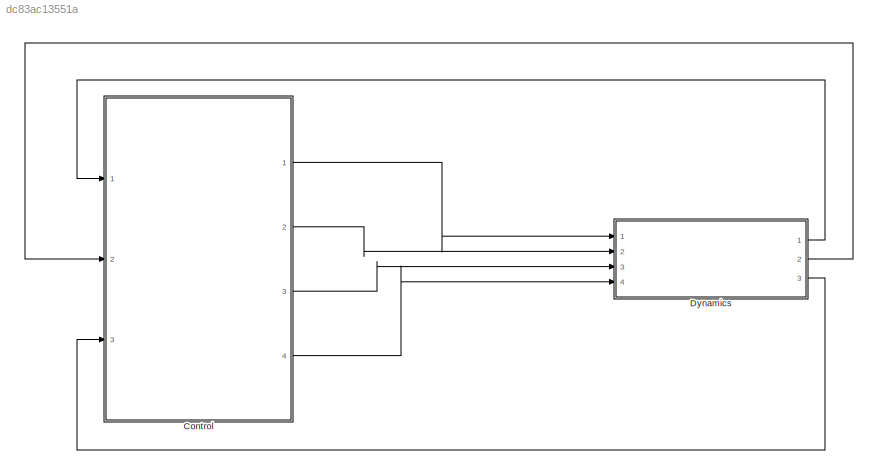
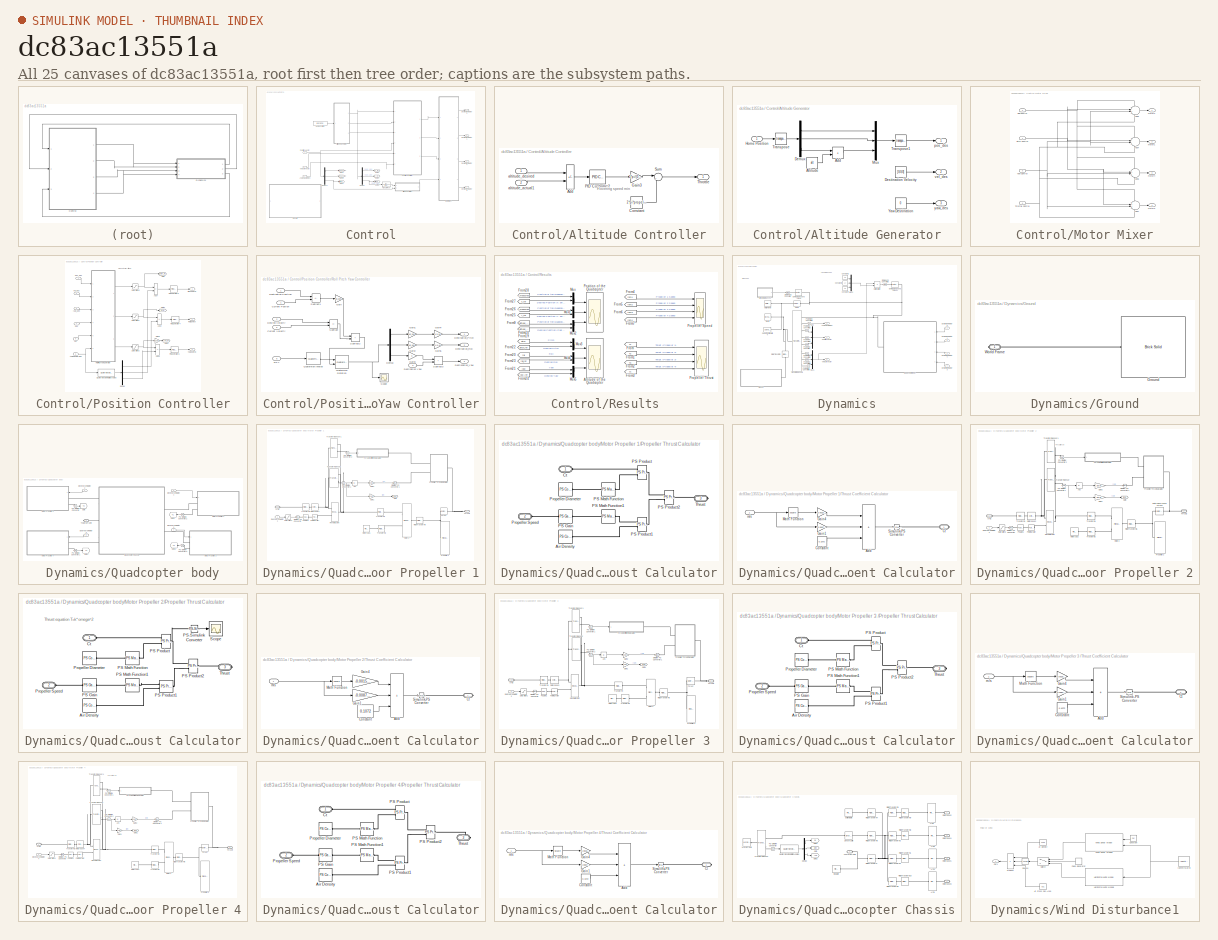
[diagram: thumbnail index - all 25 canvases of the model, root first then tree order]
MODEL slx_dc83ac13551a
KIND model
CONFIG AbsTol = 1e-4
CONFIG EnableMultiTasking = off
CONFIG FixedStep = auto
CONFIG MaxStep = 0.1
CONFIG MinStep = auto
CONFIG RelTol = 1e-4
CONFIG SampleTimeConstraint = Unconstrained
CONFIG SolverName = FixedStepAuto
CONFIG StartTime = 0.0
CONFIG StopTime = inf
WORKSPACE source: MATLAB code (in-file) + mxarray member
WORKSPACE code: load('xy_data_membrane.mat');
WORKSPACE Ax = 0.25
WORKSPACE Ay = 0.25
WORKSPACE Az = 0.25
WORKSPACE T_stop = 25
WORKSPACE Ts = 0.001
WORKSPACE Tsc = 0.001
WORKSPACE V_nominal = 1
WORKSPACE dx = -2.5
WORKSPACE dy = -1.5
WORKSPACE dz = 5
WORKSPACE i = 5
WORKSPACE infPlane: object (value not decoded)
WORKSPACE kd_altitude = 0.475
WORKSPACE kd_attitude = 40
WORKSPACE kd_position = 0.85
WORKSPACE ki_altitude = 0.0275
WORKSPACE ki_attitude = 5
WORKSPACE kp_altitude = 0.15
WORKSPACE kp_attitude = 8.5
WORKSPACE kp_position = 0.0175
WORKSPACE pkgDensity = 5
WORKSPACE pkgGrndDamp = 30
WORKSPACE pkgGrndStiff = 10000
WORKSPACE pkgGrndTransW = 1e-06
WORKSPACE pkgSize = [0.15 0.15 0.15]
WORKSPACE propeller: object (value not decoded)
WORKSPACE rho_al = 2.66
WORKSPACE rho_cfrp = 2.10666666667
WORKSPACE rho_glass = 2.56
WORKSPACE rho_nylon = 1.41
WORKSPACE rho_pla = 1.25
WORKSPACE targetX = 5
WORKSPACE targetY = 3
WORKSPACE targetZ = 1
WORKSPACE timespot = [5.94 2.5 2.5 2.5 5]
WORKSPACE tx = 2.5
WORKSPACE ty = 1.5
WORKSPACE tz = 5
WORKSPACE waypoints = [-5 -3 6 -2.5 -1.5 6 0 0 6 2.5 1.5 6 ... (15 elements, 3x5)]
WORKSPACE x0 = -5
WORKSPACE xTrajPts = [-5 -5 -2.5 0 2.5 5]
WORKSPACE x_waypt = [-5 -2.5 0 2.5 5]
WORKSPACE xrot = 0
WORKSPACE y0 = -3
WORKSPACE yTrajPts = [-3 -3 -1.5 0 1.5 3]
WORKSPACE y_waypt = [-3 -1.5 0 1.5 3]
WORKSPACE yrot = 0
WORKSPACE z0 = 0.06
WORKSPACE zTrajPts = [0.06 6 6 6 6 1]
WORKSPACE z_waypt = [6 6 6 6 1]
WORKSPACE zrot = 0
BLOCK [SubSystem] Control
  Ports = [3, 4]
  RequestExecContextInheritance = off
BLOCK [SubSystem] Control/Altitude Controller
  Ports = [2, 1]
  RequestExecContextInheritance = off
BLOCK [Sum] Control/Altitude Controller/Add
  IconShape = rectangular
  Inputs = +-
  Ports = [2, 1]
BLOCK [Constant] Control/Altitude Controller/Constant
  Value = 2*pi*propeller.hover_speed
BLOCK [Gain] Control/Altitude Controller/Gain3
  Gain = 2*pi/(0.254^4 * sqrt(1.225))
BLOCK [Reference] Control/Altitude Controller/PID Controller2  REF=slpidlib/PID Controller
  Ports = [1, 1]
  SourceBlock = slpidlib/PID Controller
  SourceProductBaseCode = SL
  SourceType = PID 1dof
BLOCK [Sum] Control/Altitude Controller/Sum
  Inputs = |++
  Ports = [2, 1]
BLOCK [Outport] Control/Altitude Controller/Throttle
BLOCK [Inport] Control/Altitude Controller/altitude_actual1
  Port = 2
BLOCK [Inport] Control/Altitude Controller/altitude_desired
BLOCK [SubSystem] Control/Altitude Generator
  Ports = [1, 3]
  RequestExecContextInheritance = off
BLOCK [Sum] Control/Altitude Generator/Add
  IconShape = rectangular
  Ports = [2, 1]
BLOCK [Constant] Control/Altitude Generator/Altitude
  Value = alt
BLOCK [Demux] Control/Altitude Generator/Demux
  Outputs = 3
  Ports = [1, 3]
BLOCK [Constant] Control/Altitude Generator/Destination Velocity
  Value = [0;0;0]
BLOCK [Inport] Control/Altitude Generator/Home Position
BLOCK [Mux] Control/Altitude Generator/Mux
  DisplayOption = bar
  Inputs = 3
  Ports = [3, 1]
BLOCK [Math] Control/Altitude Generator/Transpose
  Operator = transpose
  Ports = [1, 1]
BLOCK [Math] Control/Altitude Generator/Transpose1
  Operator = transpose
  Ports = [1, 1]
BLOCK [Constant] Control/Altitude Generator/Yaw Destination
  Value = 0
BLOCK [Outport] Control/Altitude Generator/pos_des
BLOCK [Outport] Control/Altitude Generator/vel_des
  Port = 2
BLOCK [Outport] Control/Altitude Generator/yaw_des
  Port = 3
BLOCK [Inport] Control/Angle Quaternion
  Port = 3
BLOCK [Demux] Control/Demux
  Outputs = 3
  Ports = [1, 3]
BLOCK [Demux] Control/Demux1
  Outputs = 3
  Ports = [1, 3]
BLOCK [Outport] Control/Desired rpm Motor 1
  Port = 2
BLOCK [Outport] Control/Desired rpm Motor 2
BLOCK [Outport] Control/Desired rpm Motor 3
  Port = 4
BLOCK [Outport] Control/Desired rpm Motor 4
  Port = 3
BLOCK [Goto] Control/Goto1
  GotoTag = x_measured
  TagVisibility = global
BLOCK [Goto] Control/Goto2
  GotoTag = x_ref
  TagVisibility = global
BLOCK [Goto] Control/Goto3
  GotoTag = y_ref
  TagVisibility = global
BLOCK [Goto] Control/Goto4
  GotoTag = altitude_measured
  TagVisibility = global
BLOCK [Goto] Control/Goto5
  GotoTag = altitude_ref
  TagVisibility = global
BLOCK [Goto] Control/Goto6
  GotoTag = y_measured
  TagVisibility = global
BLOCK [Constant] Control/Home Position
  Value = [x0;y0;z0]
BLOCK [SubSystem] Control/Motor Mixer
  Ports = [4, 4]
  RequestExecContextInheritance = off
BLOCK [Sum] Control/Motor Mixer/Add4
  Inputs = +--+
  Ports = [4, 1]
BLOCK [Sum] Control/Motor Mixer/Add5
  Inputs = --++
  Ports = [4, 1]
BLOCK [Sum] Control/Motor Mixer/Add6
  Inputs = -+-+
  Ports = [4, 1]
BLOCK [Sum] Control/Motor Mixer/Add7
  Inputs = ++++
  Ports = [4, 1]
BLOCK [Inport] Control/Motor Mixer/Pitch Control
BLOCK [Inport] Control/Motor Mixer/Roll Control
  Port = 2
BLOCK [Inport] Control/Motor Mixer/Throttle Control
  Port = 4
BLOCK [Inport] Control/Motor Mixer/Yaw Control
  Port = 3
BLOCK [Outport] Control/Motor Mixer/motor1
  Port = 2
BLOCK [Outport] Control/Motor Mixer/motor2
BLOCK [Outport] Control/Motor Mixer/motor3
  Port = 4
BLOCK [Outport] Control/Motor Mixer/motor4
  Port = 3
BLOCK [SubSystem] Control/Position Controller
  Ports = [6, 3]
  RequestExecContextInheritance = off
BLOCK [Sum] Control/Position Controller/Add2
  IconShape = rectangular
  Inputs = +-
  Ports = [2, 1]
BLOCK [Sum] Control/Position Controller/Add3
  IconShape = rectangular
  Inputs = +-
  Ports = [2, 1]
BLOCK [Sum] Control/Position Controller/Add7
  IconShape = rectangular
  Inputs = +-
  Ports = [2, 1]
BLOCK [Inport] Control/Position Controller/Angle Quaternion
  Port = 6
BLOCK [Demux] Control/Position Controller/Demux
  Outputs = 3
  Ports = [1, 3]
BLOCK [Gain] Control/Position Controller/Gain9
  Gain = 180/pi
BLOCK [Goto] Control/Position Controller/Goto
  GotoTag = pitch_ref
  TagVisibility = global
BLOCK [Goto] Control/Position Controller/Goto1
  GotoTag = roll_ref
  TagVisibility = global
BLOCK [Goto] Control/Position Controller/Goto2
  GotoTag = yaw_ref
  TagVisibility = global
BLOCK [Reference] Control/Position Controller/PID Controller4  REF=slpidlib/PID Controller
  Ports = [1, 1]
  SourceBlock = slpidlib/PID Controller
  SourceProductBaseCode = SL
  SourceType = PID 1dof
BLOCK [Reference] Control/Position Controller/PID Controller5  REF=slpidlib/PID Controller
  Ports = [1, 1]
  SourceBlock = slpidlib/PID Controller
  SourceProductBaseCode = SL
  SourceType = PID 1dof
BLOCK [Reference] Control/Position Controller/PID Controller6  REF=slpidlib/PID Controller
  Ports = [1, 1]
  SourceBlock = slpidlib/PID Controller
  SourceProductBaseCode = SL
  SourceType = PID 1dof
BLOCK [Outport] Control/Position Controller/Pitch Control
BLOCK [Reference] Control/Position Controller/Quaternions to Rotation Angles  REF=sharedtransform/Quaternions to Rotation Angles
  AttributesFormatString = Rotation Order: %<rotationOrder>
  Ports = [1, 1]
  SourceBlock = sharedtransform/Quaternions to Rotation Angles
  SourceProductBaseCode = AE,PW,DR,MT,UV,VE
  SourceType = Quat2Ang
BLOCK [Outport] Control/Position Controller/Roll Control
  Port = 2
BLOCK [SubSystem] Control/Position Controller/Roll Pitch Yaw Controller
  Ports = [6, 3]
  RequestExecContextInheritance = off
BLOCK [Inport] Control/Position Controller/Roll Pitch Yaw Controller/Current Postion
  Port = 4
BLOCK [Inport] Control/Position Controller/Roll Pitch Yaw Controller/Current Velocity
  Port = 5
BLOCK [Demux] Control/Position Controller/Roll Pitch Yaw Controller/Demux
  Outputs = 3
  Ports = [1, 3]
BLOCK [Inport] Control/Position Controller/Roll Pitch Yaw Controller/Desired Velocity
  Port = 2
BLOCK [Inport] Control/Position Controller/Roll Pitch Yaw Controller/Destination Position
BLOCK [Inport] Control/Position Controller/Roll Pitch Yaw Controller/Destination Yaw
  Port = 3
BLOCK [Outport] Control/Position Controller/Roll Pitch Yaw Controller/Destination_Pitch
BLOCK [Outport] Control/Position Controller/Roll Pitch Yaw Controller/Destination_Roll
  Port = 2
BLOCK [Outport] Control/Position Controller/Roll Pitch Yaw Controller/Destionation_Yaw
  Port = 3
BLOCK [Gain] Control/Position Controller/Roll Pitch Yaw Controller/Gain
  Gain = Kp_pos
BLOCK [Gain] Control/Position Controller/Roll Pitch Yaw Controller/Gain1
  Gain = Kd_pos
BLOCK [Gain] Control/Position Controller/Roll Pitch Yaw Controller/Gain2
  Gain = Kd_pos
BLOCK [Gain] Control/Position Controller/Roll Pitch Yaw Controller/Gain3
  Gain = 0
BLOCK [Gain] Control/Position Controller/Roll Pitch Yaw Controller/Gain4
  Gain = 1/9.81
BLOCK [Gain] Control/Position Controller/Roll Pitch Yaw Controller/Gain5
  Gain = -1/9.81
BLOCK [Reference] Control/Position Controller/Roll Pitch Yaw Controller/Quaternion Inverse  REF=aerolibutil/Quaternion
Inverse
  Ports = [1, 1]
  SourceBlock = aerolibutil/Quaternion\nInverse
  SourceProductBaseCode = AE
  SourceType = Quaternion Inverse
BLOCK [Reference] Control/Position Controller/Roll Pitch Yaw Controller/Quaternion Rotation  REF=aerolibutil/Quaternion
Rotation
  Ports = [2, 1]
  SourceBlock = aerolibutil/Quaternion\nRotation
  SourceProductBaseCode = AE
  SourceType = Quaternion Rotation
BLOCK [Inport] Control/Position Controller/Roll Pitch Yaw Controller/RPY
  Port = 6
BLOCK [Scope] Control/Position Controller/Roll Pitch Yaw Controller/Scope
  Floating = off
  NumInputPorts = 1
  Ports = [1]
  ScopeSpecificationString = Simulink.scopes.TimeScopeBlockCfg('CurrentConfiguration', extmgr.ConfigurationSet(extmgr.Configuration('Core','General UI',true),extmgr.Configuration('Core','Source UI',true),extmgr.Configuration('Sources','WiredSimulink',true,'DataLoggingVariableName','ScopeData1'),extmgr.Configuration('Visuals','Time Domain',true),extmgr.Configuration('Tools','Plot Navigation',true),extmgr.Configuration('Tools',...<+40ch>
BLOCK [Sum] Control/Position Controller/Roll Pitch Yaw Controller/Subtract
  IconShape = rectangular
  Inputs = +-
  Ports = [2, 1]
BLOCK [Sum] Control/Position Controller/Roll Pitch Yaw Controller/Subtract1
  IconShape = rectangular
  Inputs = +-
  Ports = [2, 1]
BLOCK [Sum] Control/Position Controller/Roll Pitch Yaw Controller/Subtract2
  IconShape = rectangular
  Ports = [2, 1]
BLOCK [Sum] Control/Position Controller/Roll Pitch Yaw Controller/Subtract3
  IconShape = rectangular
  Ports = [2, 1]
BLOCK [Saturate] Control/Position Controller/Saturation1
  LowerLimit = -pi/3
  UpperLimit = pi/3
BLOCK [Saturate] Control/Position Controller/Saturation2
  LowerLimit = -pi/3
  UpperLimit = pi/3
BLOCK [Saturate] Control/Position Controller/Saturation3
  LowerLimit = -pi/3
  UpperLimit = pi/3
BLOCK [Outport] Control/Position Controller/Yaw Control
  Port = 3
BLOCK [Inport] Control/Position Controller/pos
  Port = 4
BLOCK [Inport] Control/Position Controller/pos_des
BLOCK [Inport] Control/Position Controller/vel
  Port = 5
BLOCK [Inport] Control/Position Controller/vel_des
  Port = 2
BLOCK [Inport] Control/Position Controller/yaw_des
  Port = 3
BLOCK [Inport] Control/Position Vector
BLOCK [SubSystem] Control/Results 
  Ports = []
  RequestExecContextInheritance = off
BLOCK [Scope] Control/Results /Attitude of the Quadcopter
  Floating = off
  NumInputPorts = 3
  Ports = [3]
  ScopeSpecificationString = Simulink.scopes.TimeScopeBlockCfg('CurrentConfiguration', extmgr.ConfigurationSet(extmgr.Configuration('Core','General UI',true),extmgr.Configuration('Core','Source UI',true),extmgr.Configuration('Sources','WiredSimulink',true,'DataLoggingVariableName','ScopeData2'),extmgr.Configuration('Visuals','Time Domain',true,'SerializedDisplays',{struct('MinYLimReal','-0.2063','MaxYLimReal','0.11639','YLabe...<+2746ch>
BLOCK [From] Control/Results /From
  GotoTag = T1
  TagVisibility = global
BLOCK [From] Control/Results /From1
  GotoTag = T2
  TagVisibility = global
BLOCK [From] Control/Results /From10
  GotoTag = altitude_ref
  TagVisibility = global
BLOCK [From] Control/Results /From19
  GotoTag = pitch
  TagVisibility = global
BLOCK [From] Control/Results /From2
  GotoTag = T3
  TagVisibility = global
BLOCK [From] Control/Results /From20
  GotoTag = roll
  TagVisibility = global
BLOCK [From] Control/Results /From21
  GotoTag = yaw
  TagVisibility = global
BLOCK [From] Control/Results /From22
  GotoTag = pitch_ref
  TagVisibility = global
BLOCK [From] Control/Results /From23
  GotoTag = roll_ref
  TagVisibility = global
BLOCK [From] Control/Results /From24
  GotoTag = yaw_ref
  TagVisibility = global
BLOCK [From] Control/Results /From25
  GotoTag = y_ref
  TagVisibility = global
BLOCK [From] Control/Results /From26
  GotoTag = y_measured
  TagVisibility = global
BLOCK [From] Control/Results /From27
  GotoTag = x_ref
  TagVisibility = global
BLOCK [From] Control/Results /From28
  GotoTag = x_measured
  TagVisibility = global
BLOCK [From] Control/Results /From3
  GotoTag = T4
  TagVisibility = global
BLOCK [From] Control/Results /From4
  GotoTag = rpm1
  TagVisibility = global
BLOCK [From] Control/Results /From5
  GotoTag = rpm2
  TagVisibility = global
BLOCK [From] Control/Results /From6
  GotoTag = rpm3
  TagVisibility = global
BLOCK [From] Control/Results /From7
  GotoTag = rpm4
  TagVisibility = global
BLOCK [From] Control/Results /From9
  GotoTag = altitude_measured
  TagVisibility = global
BLOCK [Mux] Control/Results /Mux
  DisplayOption = bar
  Inputs = 2
  Ports = [2, 1]
BLOCK [Mux] Control/Results /Mux1
  DisplayOption = bar
  Inputs = 2
  Ports = [2, 1]
BLOCK [Mux] Control/Results /Mux2
  DisplayOption = bar
  Inputs = 2
  Ports = [2, 1]
BLOCK [Mux] Control/Results /Mux3
  DisplayOption = bar
  Inputs = 2
  Ports = [2, 1]
BLOCK [Mux] Control/Results /Mux4
  DisplayOption = bar
  Inputs = 2
  Ports = [2, 1]
BLOCK [Mux] Control/Results /Mux5
  DisplayOption = bar
  Inputs = 2
  Ports = [2, 1]
BLOCK [Scope] Control/Results /Position of the Quadcopter
  Floating = off
  NumInputPorts = 3
  Ports = [3]
  ScopeSpecificationString = Simulink.scopes.TimeScopeBlockCfg('CurrentConfiguration', extmgr.ConfigurationSet(extmgr.Configuration('Core','General UI',true),extmgr.Configuration('Core','Source UI',true),extmgr.Configuration('Sources','WiredSimulink',true,'DataLoggingVariableName','ScopeData1'),extmgr.Configuration('Visuals','Time Domain',true,'SerializedDisplays',{struct('MinYLimReal','-6.37689','MaxYLimReal','6.96012','YLab...<+2894ch>
BLOCK [Scope] Control/Results /Propeller Speed
  Floating = off
  NumInputPorts = 4
  Ports = [4]
  ScopeSpecificationString = Simulink.scopes.TimeScopeBlockCfg('CurrentConfiguration', extmgr.ConfigurationSet(extmgr.Configuration('Core','General UI',true),extmgr.Configuration('Core','Source UI',true),extmgr.Configuration('Sources','WiredSimulink',true,'DataLoggingVariableName','ScopeData1'),extmgr.Configuration('Visuals','Time Domain',true,'SerializedDisplays',{struct('MinYLimReal','-5141.65144','MaxYLimReal','5140.4032',...<+1512ch>
BLOCK [Scope] Control/Results /Propeller Thrust
  Floating = off
  NumInputPorts = 4
  Ports = [4]
  ScopeSpecificationString = Simulink.scopes.TimeScopeBlockCfg('CurrentConfiguration', extmgr.ConfigurationSet(extmgr.Configuration('Core','General UI',true),extmgr.Configuration('Core','Source UI',true),extmgr.Configuration('Sources','WiredSimulink',true,'DataLoggingVariableName','ScopeData3'),extmgr.Configuration('Visuals','Time Domain',true,'SerializedDisplays',{struct('MinYLimReal','-7.42921','MaxYLimReal','9.54774','YLab...<+1627ch>
BLOCK [TransferFcn] Control/Transfer Fcn
  Denominator = [1 1]
BLOCK [Inport] Control/Velocity Vector
  Port = 2
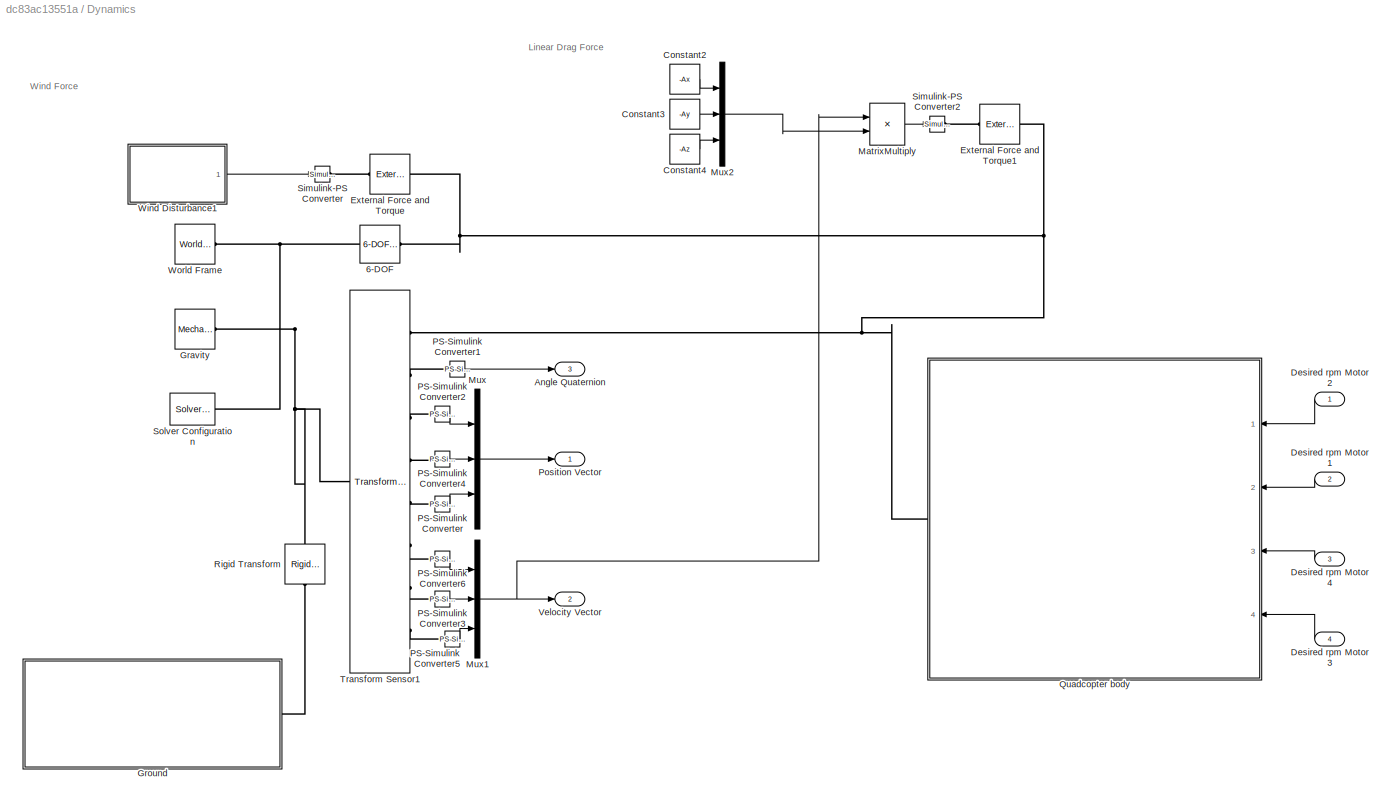
BLOCK [SubSystem] Dynamics
  Ports = [4, 3]
  RequestExecContextInheritance = off
BLOCK [Reference] Dynamics/6-DOF  REF=sm_lib/Joints/6-DOF Joint
  Ports = [0, 0, 0, 0, 0, 1, 1]
  SourceBlock = sm_lib/Joints/6-DOF Joint
  SourceProductBaseCode = MS
  SourceType = 6-DOF Joint
BLOCK [Outport] Dynamics/Angle Quaternion
  Port = 3
BLOCK [Constant] Dynamics/Constant2
  Value = -Ax
BLOCK [Constant] Dynamics/Constant3
  Value = -Ay
BLOCK [Constant] Dynamics/Constant4
  Value = -Az
BLOCK [Inport] Dynamics/Desired rpm Motor 1 
  Port = 2
BLOCK [Inport] Dynamics/Desired rpm Motor 2
BLOCK [Inport] Dynamics/Desired rpm Motor 3
  Port = 4
BLOCK [Inport] Dynamics/Desired rpm Motor 4
  Port = 3
BLOCK [Reference] Dynamics/External Force and Torque  REF=sm_lib/Forces and
Torques/External Force
and Torque
  Ports = [0, 0, 0, 0, 0, 1, 1]
  SourceBlock = sm_lib/Forces and\nTorques/External Force\nand Torque
  SourceProductBaseCode = MS
  SourceType = External Force\nand Torque
BLOCK [Reference] Dynamics/External Force and Torque1  REF=sm_lib/Forces and
Torques/External Force
and Torque
  Ports = [0, 0, 0, 0, 0, 1, 1]
  SourceBlock = sm_lib/Forces and\nTorques/External Force\nand Torque
  SourceProductBaseCode = MS
  SourceType = External Force\nand Torque
BLOCK [Reference] Dynamics/Gravity  REF=sm_lib/Utilities/Mechanism
Configuration
  Ports = [0, 0, 0, 0, 0, 0, 1]
  SourceBlock = sm_lib/Utilities/Mechanism\nConfiguration
  SourceProductBaseCode = MS
  SourceType = Mechanism\nConfiguration
BLOCK [SubSystem] Dynamics/Ground
  NameLocation = top
  Ports = [0, 0, 0, 0, 0, 0, 1]
  RequestExecContextInheritance = off
BLOCK [Reference] Dynamics/Ground/Ground  REF=sm_lib/Body Elements/Brick Solid
  NameLocation = top
  Ports = [0, 0, 0, 0, 0, 2, 1]
  SourceBlock = sm_lib/Body Elements/Brick Solid
  SourceProductBaseCode = MS
  SourceType = Brick Solid
BLOCK [PMIOPort] Dynamics/Ground/World Frame
  Side = Right
BLOCK [Product] Dynamics/MatrixMultiply
  Ports = [2, 1]
BLOCK [Mux] Dynamics/Mux
  DisplayOption = bar
  Inputs = 3
  Ports = [3, 1]
BLOCK [Mux] Dynamics/Mux1
  DisplayOption = bar
  Inputs = 3
  Ports = [3, 1]
BLOCK [Mux] Dynamics/Mux2
  DisplayOption = bar
  Inputs = 3
  Ports = [3, 1]
BLOCK [Reference] Dynamics/PS-Simulink Converter  REF=nesl_utility/PS-Simulink
Converter
  Ports = [0, 1, 0, 0, 0, 1]
  SourceBlock = nesl_utility/PS-Simulink\nConverter
  SourceProductBaseCode = PW,SS
  SourceType = PS-Simulink\nConverter
BLOCK [Reference] Dynamics/PS-Simulink Converter1  REF=nesl_utility/PS-Simulink
Converter
  Ports = [0, 1, 0, 0, 0, 1]
  SourceBlock = nesl_utility/PS-Simulink\nConverter
  SourceProductBaseCode = PW,SS
  SourceType = PS-Simulink\nConverter
BLOCK [Reference] Dynamics/PS-Simulink Converter2  REF=nesl_utility/PS-Simulink
Converter
  Ports = [0, 1, 0, 0, 0, 1]
  SourceBlock = nesl_utility/PS-Simulink\nConverter
  SourceProductBaseCode = PW,SS
  SourceType = PS-Simulink\nConverter
BLOCK [Reference] Dynamics/PS-Simulink Converter3  REF=nesl_utility/PS-Simulink
Converter
  Ports = [0, 1, 0, 0, 0, 1]
  SourceBlock = nesl_utility/PS-Simulink\nConverter
  SourceProductBaseCode = PW,SS
  SourceType = PS-Simulink\nConverter
BLOCK [Reference] Dynamics/PS-Simulink Converter4  REF=nesl_utility/PS-Simulink
Converter
  Ports = [0, 1, 0, 0, 0, 1]
  SourceBlock = nesl_utility/PS-Simulink\nConverter
  SourceProductBaseCode = PW,SS
  SourceType = PS-Simulink\nConverter
BLOCK [Reference] Dynamics/PS-Simulink Converter5  REF=nesl_utility/PS-Simulink
Converter
  Ports = [0, 1, 0, 0, 0, 1]
  SourceBlock = nesl_utility/PS-Simulink\nConverter
  SourceProductBaseCode = PW,SS
  SourceType = PS-Simulink\nConverter
BLOCK [Reference] Dynamics/PS-Simulink Converter6  REF=nesl_utility/PS-Simulink
Converter
  Ports = [0, 1, 0, 0, 0, 1]
  SourceBlock = nesl_utility/PS-Simulink\nConverter
  SourceProductBaseCode = PW,SS
  SourceType = PS-Simulink\nConverter
BLOCK [Outport] Dynamics/Position Vector
BLOCK [SubSystem] Dynamics/Quadcopter body
  NameLocation = top
  Ports = [4, 0, 0, 0, 0, 0, 1]
  RequestExecContextInheritance = off
BLOCK [Inport] Dynamics/Quadcopter body/Desired rpm Motor 1 
  Port = 2
BLOCK [Inport] Dynamics/Quadcopter body/Desired rpm Motor 2
BLOCK [Inport] Dynamics/Quadcopter body/Desired rpm Motor 3
  Port = 4
BLOCK [Inport] Dynamics/Quadcopter body/Desired rpm Motor 4
  Port = 3
BLOCK [Goto] Dynamics/Quadcopter body/Goto
  GotoTag = T2
  TagVisibility = global
BLOCK [Goto] Dynamics/Quadcopter body/Goto1
  GotoTag = T4
  TagVisibility = global
BLOCK [Goto] Dynamics/Quadcopter body/Goto2
  GotoTag = T1
  TagVisibility = global
BLOCK [Goto] Dynamics/Quadcopter body/Goto3
  GotoTag = T3
  TagVisibility = global
BLOCK [SubSystem] Dynamics/Quadcopter body/Motor Propeller 1
  Ports = [1, 0, 0, 0, 0, 2]
  RequestExecContextInheritance = off
BLOCK [Abs] Dynamics/Quadcopter body/Motor Propeller 1/Abs
  SaturateOnIntegerOverflow = off
BLOCK [PMIOPort] Dynamics/Quadcopter body/Motor Propeller 1/Arm1
  Side = Left
BLOCK [Inport] Dynamics/Quadcopter body/Motor Propeller 1/Desired rpm Motor 1
BLOCK [Gain] Dynamics/Quadcopter body/Motor Propeller 1/Gain1
  Gain = 30/pi
BLOCK [Gain] Dynamics/Quadcopter body/Motor Propeller 1/Gain2
  Gain = 30/pi
BLOCK [Goto] Dynamics/Quadcopter body/Motor Propeller 1/Goto
  GotoTag = rpm1
  TagVisibility = global
BLOCK [Reference] Dynamics/Quadcopter body/Motor Propeller 1/PS Gain1  REF=fl_lib/Physical Signals/Functions/PS Gain
  Ports = [0, 0, 0, 0, 0, 1, 1]
  SourceBlock = fl_lib/Physical Signals/Functions/PS Gain
  SourceProductBaseCode = SS
  SourceType = PS Gain
BLOCK [Reference] Dynamics/Quadcopter body/Motor Propeller 1/PS Integrator  REF=fl_lib/Physical Signals/Linear Operators/PS Integrator
  Ports = [0, 0, 0, 0, 0, 1, 1]
  SourceBlock = fl_lib/Physical Signals/Linear Operators/PS Integrator
  SourceProductBaseCode = SS
  SourceType = PS Integrator
BLOCK [Reference] Dynamics/Quadcopter body/Motor Propeller 1/PS-Simulink Converter1  REF=nesl_utility/PS-Simulink
Converter
  Ports = [0, 1, 0, 0, 0, 1]
  SourceBlock = nesl_utility/PS-Simulink\nConverter
  SourceProductBaseCode = PW,SS
  SourceType = PS-Simulink\nConverter
BLOCK [Reference] Dynamics/Quadcopter body/Motor Propeller 1/PS-Simulink Converter2  REF=nesl_utility/PS-Simulink
Converter
  Ports = [0, 1, 0, 0, 0, 1]
  SourceBlock = nesl_utility/PS-Simulink\nConverter
  SourceProductBaseCode = PW,SS
  SourceType = PS-Simulink\nConverter
BLOCK [Reference] Dynamics/Quadcopter body/Motor Propeller 1/Propeller 1  REF=sm_lib/Body Elements/File Solid
  Ports = [0, 0, 0, 0, 0, 0, 1]
  SourceBlock = sm_lib/Body Elements/File Solid
  SourceProductBaseCode = MS
  SourceType = File Solid
BLOCK [SubSystem] Dynamics/Quadcopter body/Motor Propeller 1/Propeller Thrust Calculator
  Ports = [0, 0, 0, 0, 0, 2, 1]
  RequestExecContextInheritance = off
BLOCK [Reference] Dynamics/Quadcopter body/Motor Propeller 1/Propeller Thrust Calculator/Air Density  REF=fl_lib/Physical Signals/Sources/PS Constant
  Ports = [0, 0, 0, 0, 0, 0, 1]
  SourceBlock = fl_lib/Physical Signals/Sources/PS Constant
  SourceProductBaseCode = SS
  SourceType = PS Constant
BLOCK [PMIOPort] Dynamics/Quadcopter body/Motor Propeller 1/Propeller Thrust Calculator/Ct
  Side = Left
BLOCK [Reference] Dynamics/Quadcopter body/Motor Propeller 1/Propeller Thrust Calculator/PS Gain  REF=fl_lib/Physical Signals/Functions/PS Gain
  Ports = [0, 0, 0, 0, 0, 1, 1]
  SourceBlock = fl_lib/Physical Signals/Functions/PS Gain
  SourceProductBaseCode = SS
  SourceType = PS Gain
BLOCK [Reference] Dynamics/Quadcopter body/Motor Propeller 1/Propeller Thrust Calculator/PS Math Function  REF=fl_lib/Physical Signals/Functions/PS Math Function
  Ports = [0, 0, 0, 0, 0, 1, 1]
  SourceBlock = fl_lib/Physical Signals/Functions/PS Math Function
  SourceProductBaseCode = SS
  SourceType = PS Math Function
BLOCK [Reference] Dynamics/Quadcopter body/Motor Propeller 1/Propeller Thrust Calculator/PS Math Function1  REF=fl_lib/Physical Signals/Functions/PS Math Function
  Ports = [0, 0, 0, 0, 0, 1, 1]
  SourceBlock = fl_lib/Physical Signals/Functions/PS Math Function
  SourceProductBaseCode = SS
  SourceType = PS Math Function
BLOCK [Reference] Dynamics/Quadcopter body/Motor Propeller 1/Propeller Thrust Calculator/PS Product  REF=fl_lib/Physical Signals/Functions/PS Product
  Ports = [0, 0, 0, 0, 0, 2, 1]
  SourceBlock = fl_lib/Physical Signals/Functions/PS Product
  SourceProductBaseCode = SS
  SourceType = PS Product
BLOCK [Reference] Dynamics/Quadcopter body/Motor Propeller 1/Propeller Thrust Calculator/PS Product1  REF=fl_lib/Physical Signals/Functions/PS Product
  Ports = [0, 0, 0, 0, 0, 2, 1]
  SourceBlock = fl_lib/Physical Signals/Functions/PS Product
  SourceProductBaseCode = SS
  SourceType = PS Product
BLOCK [Reference] Dynamics/Quadcopter body/Motor Propeller 1/Propeller Thrust Calculator/PS Product2  REF=fl_lib/Physical Signals/Functions/PS Product
  Ports = [0, 0, 0, 0, 0, 2, 1]
  SourceBlock = fl_lib/Physical Signals/Functions/PS Product
  SourceProductBaseCode = SS
  SourceType = PS Product
BLOCK [Reference] Dynamics/Quadcopter body/Motor Propeller 1/Propeller Thrust Calculator/Propeller Diameter  REF=fl_lib/Physical Signals/Sources/PS Constant
  Ports = [0, 0, 0, 0, 0, 0, 1]
  SourceBlock = fl_lib/Physical Signals/Sources/PS Constant
  SourceProductBaseCode = SS
  SourceType = PS Constant
BLOCK [PMIOPort] Dynamics/Quadcopter body/Motor Propeller 1/Propeller Thrust Calculator/Propeller Speed
  Port = 2
  Side = Left
BLOCK [PMIOPort] Dynamics/Quadcopter body/Motor Propeller 1/Propeller Thrust Calculator/Thrust
  Port = 3
  Side = Right
BLOCK [Reference] Dynamics/Quadcopter body/Motor Propeller 1/Revolute Joint  REF=sm_lib/Joints/Revolute Joint
  Ports = [0, 0, 0, 0, 0, 2, 1]
  SourceBlock = sm_lib/Joints/Revolute Joint
  SourceProductBaseCode = MS
  SourceType = Revolute Joint
BLOCK [Reference] Dynamics/Quadcopter body/Motor Propeller 1/Rigid Transform6  REF=sm_lib/Frames and
Transforms/Rigid
Transform
  Ports = [0, 0, 0, 0, 0, 1, 1]
  SourceBlock = sm_lib/Frames and\nTransforms/Rigid\nTransform
  SourceProductBaseCode = MS
  SourceType = Rigid\nTransform
BLOCK [Saturate] Dynamics/Quadcopter body/Motor Propeller 1/Saturation1
  LowerLimit = 0
  UpperLimit = 10000
BLOCK [Reference] Dynamics/Quadcopter body/Motor Propeller 1/Simulink-PS Converter  REF=nesl_utility/Simulink-PS
Converter
  Ports = [1, 0, 0, 0, 0, 0, 1]
  SourceBlock = nesl_utility/Simulink-PS\nConverter
  SourceProductBaseCode = PW,SS
  SourceType = Simulink-PS\nConverter
BLOCK [Reference] Dynamics/Quadcopter body/Motor Propeller 1/Simulink-PS Converter1  REF=nesl_utility/Simulink-PS
Converter
  Ports = [1, 0, 0, 0, 0, 0, 1]
  SourceBlock = nesl_utility/Simulink-PS\nConverter
  SourceProductBaseCode = PW,SS
  SourceType = Simulink-PS\nConverter
BLOCK [Reference] Dynamics/Quadcopter body/Motor Propeller 1/Thrust  REF=sm_lib/Forces and
Torques/External Force
and Torque
  Ports = [0, 0, 0, 0, 0, 1, 1]
  SourceBlock = sm_lib/Forces and\nTorques/External Force\nand Torque
  SourceProductBaseCode = MS
  SourceType = External Force\nand Torque
BLOCK [SubSystem] Dynamics/Quadcopter body/Motor Propeller 1/Thrust Coefficient Calculator
  Ports = [1, 0, 0, 0, 0, 0, 1]
  RequestExecContextInheritance = off
BLOCK [Sum] Dynamics/Quadcopter body/Motor Propeller 1/Thrust Coefficient Calculator/Add
  IconShape = rectangular
  Inputs = +++
  Ports = [3, 1]
BLOCK [Constant] Dynamics/Quadcopter body/Motor Propeller 1/Thrust Coefficient Calculator/Constant
  Value = 0.1072
BLOCK [PMIOPort] Dynamics/Quadcopter body/Motor Propeller 1/Thrust Coefficient Calculator/Ct
  NameLocation = top
  Side = Right
BLOCK [Gain] Dynamics/Quadcopter body/Motor Propeller 1/Thrust Coefficient Calculator/Gain1
  Gain = -0.008716
BLOCK [Gain] Dynamics/Quadcopter body/Motor Propeller 1/Thrust Coefficient Calculator/Gain4
  Gain = -0.001589
BLOCK [Math] Dynamics/Quadcopter body/Motor Propeller 1/Thrust Coefficient Calculator/Math Function
  Operator = square
  Ports = [1, 1]
BLOCK [Reference] Dynamics/Quadcopter body/Motor Propeller 1/Thrust Coefficient Calculator/Simulink-PS Converter  REF=nesl_utility/Simulink-PS
Converter
  Ports = [1, 0, 0, 0, 0, 0, 1]
  SourceBlock = nesl_utility/Simulink-PS\nConverter
  SourceProductBaseCode = PW,SS
  SourceType = Simulink-PS\nConverter
BLOCK [Inport] Dynamics/Quadcopter body/Motor Propeller 1/Thrust Coefficient Calculator/m//s
BLOCK [PMIOPort] Dynamics/Quadcopter body/Motor Propeller 1/Thrust1 
  Port = 2
  Side = Left
BLOCK [Reference] Dynamics/Quadcopter body/Motor Propeller 1/Transform Sensor  REF=sm_lib/Frames and
Transforms/Transform
Sensor
  Ports = [0, 0, 0, 0, 0, 1, 2]
  SourceBlock = sm_lib/Frames and\nTransforms/Transform\nSensor
  SourceProductBaseCode = MS
  SourceType = Transform\nSensor
BLOCK [Reference] Dynamics/Quadcopter body/Motor Propeller 1/Transform Sensor1  REF=sm_lib/Frames and
Transforms/Transform
Sensor
  Ports = [0, 0, 0, 0, 0, 1, 2]
  SourceBlock = sm_lib/Frames and\nTransforms/Transform\nSensor
  SourceProductBaseCode = MS
  SourceType = Transform\nSensor
BLOCK [Reference] Dynamics/Quadcopter body/Motor Propeller 1/Transform1  REF=sm_lib/Frames and
Transforms/Rigid
Transform
  Ports = [0, 0, 0, 0, 0, 1, 1]
  SourceBlock = sm_lib/Frames and\nTransforms/Rigid\nTransform
  SourceProductBaseCode = MS
  SourceType = Rigid\nTransform
BLOCK [Reference] Dynamics/Quadcopter body/Motor Propeller 1/Transform2  REF=sm_lib/Frames and
Transforms/Rigid
Transform
  Ports = [0, 0, 0, 0, 0, 1, 1]
  SourceBlock = sm_lib/Frames and\nTransforms/Rigid\nTransform
  SourceProductBaseCode = MS
  SourceType = Rigid\nTransform
BLOCK [Reference] Dynamics/Quadcopter body/Motor Propeller 1/Transform4  REF=sm_lib/Frames and
Transforms/Rigid
Transform
  Ports = [0, 0, 0, 0, 0, 1, 1]
  SourceBlock = sm_lib/Frames and\nTransforms/Rigid\nTransform
  SourceProductBaseCode = MS
  SourceType = Rigid\nTransform
BLOCK [Reference] Dynamics/Quadcopter body/Motor Propeller 1/motor 1  REF=sm_lib/Body Elements/File Solid
  Ports = [0, 0, 0, 0, 0, 2, 1]
  SourceBlock = sm_lib/Body Elements/File Solid
  SourceProductBaseCode = MS
  SourceType = File Solid
BLOCK [Reference] Dynamics/Quadcopter body/Motor Propeller 1/motor base 1  REF=sm_lib/Body Elements/Cylindrical Solid
  Ports = [0, 0, 0, 0, 0, 1, 1]
  SourceBlock = sm_lib/Body Elements/Cylindrical Solid
  SourceProductBaseCode = MS
  SourceType = Cylindrical Solid
BLOCK [Reference] Dynamics/Quadcopter body/Motor Propeller 1/motor cap 1  REF=sm_lib/Body Elements/File Solid
  Ports = [0, 0, 0, 0, 0, 0, 1]
  SourceBlock = sm_lib/Body Elements/File Solid
  SourceProductBaseCode = MS
  SourceType = File Solid
BLOCK [SubSystem] Dynamics/Quadcopter body/Motor Propeller 2
  Ports = [1, 0, 0, 0, 0, 2]
  RequestExecContextInheritance = off
BLOCK [Abs] Dynamics/Quadcopter body/Motor Propeller 2/Abs
  SaturateOnIntegerOverflow = off
BLOCK [PMIOPort] Dynamics/Quadcopter body/Motor Propeller 2/Arm2
  Side = Left
BLOCK [Inport] Dynamics/Quadcopter body/Motor Propeller 2/Desired rpm Motor 2
BLOCK [Reference] Dynamics/Quadcopter body/Motor Propeller 2/External Force and Torque  REF=sm_lib/Forces and
Torques/External Force
and Torque
  Ports = [0, 0, 0, 0, 0, 1, 1]
  SourceBlock = sm_lib/Forces and\nTorques/External Force\nand Torque
  SourceProductBaseCode = MS
  SourceType = External Force\nand Torque
BLOCK [Gain] Dynamics/Quadcopter body/Motor Propeller 2/Gain1
  Gain = 30/pi
BLOCK [Gain] Dynamics/Quadcopter body/Motor Propeller 2/Gain2
  Gain = 30/pi
BLOCK [Goto] Dynamics/Quadcopter body/Motor Propeller 2/Goto
  GotoTag = rpm2
  TagVisibility = global
BLOCK [Reference] Dynamics/Quadcopter body/Motor Propeller 2/PS Gain1  REF=fl_lib/Physical Signals/Functions/PS Gain
  Ports = [0, 0, 0, 0, 0, 1, 1]
  SourceBlock = fl_lib/Physical Signals/Functions/PS Gain
  SourceProductBaseCode = SS
  SourceType = PS Gain
BLOCK [Reference] Dynamics/Quadcopter body/Motor Propeller 2/PS Integrator  REF=fl_lib/Physical Signals/Linear Operators/PS Integrator
  Ports = [0, 0, 0, 0, 0, 1, 1]
  SourceBlock = fl_lib/Physical Signals/Linear Operators/PS Integrator
  SourceProductBaseCode = SS
  SourceType = PS Integrator
BLOCK [Reference] Dynamics/Quadcopter body/Motor Propeller 2/PS-Simulink Converter1  REF=nesl_utility/PS-Simulink
Converter
  Ports = [0, 1, 0, 0, 0, 1]
  SourceBlock = nesl_utility/PS-Simulink\nConverter
  SourceProductBaseCode = PW,SS
  SourceType = PS-Simulink\nConverter
BLOCK [Reference] Dynamics/Quadcopter body/Motor Propeller 2/PS-Simulink Converter2  REF=nesl_utility/PS-Simulink
Converter
  Ports = [0, 1, 0, 0, 0, 1]
  SourceBlock = nesl_utility/PS-Simulink\nConverter
  SourceProductBaseCode = PW,SS
  SourceType = PS-Simulink\nConverter
BLOCK [Reference] Dynamics/Quadcopter body/Motor Propeller 2/Propeller 2  REF=sm_lib/Body Elements/File Solid
  Ports = [0, 0, 0, 0, 0, 0, 1]
  SourceBlock = sm_lib/Body Elements/File Solid
  SourceProductBaseCode = MS
  SourceType = File Solid
BLOCK [SubSystem] Dynamics/Quadcopter body/Motor Propeller 2/Propeller Thrust Calculator
  Ports = [0, 0, 0, 0, 0, 2, 1]
  RequestExecContextInheritance = off
BLOCK [Reference] Dynamics/Quadcopter body/Motor Propeller 2/Propeller Thrust Calculator/Air Density  REF=fl_lib/Physical Signals/Sources/PS Constant
  Ports = [0, 0, 0, 0, 0, 0, 1]
  SourceBlock = fl_lib/Physical Signals/Sources/PS Constant
  SourceProductBaseCode = SS
  SourceType = PS Constant
BLOCK [PMIOPort] Dynamics/Quadcopter body/Motor Propeller 2/Propeller Thrust Calculator/Ct
  Side = Left
BLOCK [Reference] Dynamics/Quadcopter body/Motor Propeller 2/Propeller Thrust Calculator/PS Gain  REF=fl_lib/Physical Signals/Functions/PS Gain
  Ports = [0, 0, 0, 0, 0, 1, 1]
  SourceBlock = fl_lib/Physical Signals/Functions/PS Gain
  SourceProductBaseCode = SS
  SourceType = PS Gain
BLOCK [Reference] Dynamics/Quadcopter body/Motor Propeller 2/Propeller Thrust Calculator/PS Math Function  REF=fl_lib/Physical Signals/Functions/PS Math Function
  Ports = [0, 0, 0, 0, 0, 1, 1]
  SourceBlock = fl_lib/Physical Signals/Functions/PS Math Function
  SourceProductBaseCode = SS
  SourceType = PS Math Function
BLOCK [Reference] Dynamics/Quadcopter body/Motor Propeller 2/Propeller Thrust Calculator/PS Math Function1  REF=fl_lib/Physical Signals/Functions/PS Math Function
  Ports = [0, 0, 0, 0, 0, 1, 1]
  SourceBlock = fl_lib/Physical Signals/Functions/PS Math Function
  SourceProductBaseCode = SS
  SourceType = PS Math Function
BLOCK [Reference] Dynamics/Quadcopter body/Motor Propeller 2/Propeller Thrust Calculator/PS Product  REF=fl_lib/Physical Signals/Functions/PS Product
  Ports = [0, 0, 0, 0, 0, 2, 1]
  SourceBlock = fl_lib/Physical Signals/Functions/PS Product
  SourceProductBaseCode = SS
  SourceType = PS Product
BLOCK [Reference] Dynamics/Quadcopter body/Motor Propeller 2/Propeller Thrust Calculator/PS Product1  REF=fl_lib/Physical Signals/Functions/PS Product
  Ports = [0, 0, 0, 0, 0, 2, 1]
  SourceBlock = fl_lib/Physical Signals/Functions/PS Product
  SourceProductBaseCode = SS
  SourceType = PS Product
BLOCK [Reference] Dynamics/Quadcopter body/Motor Propeller 2/Propeller Thrust Calculator/PS Product2  REF=fl_lib/Physical Signals/Functions/PS Product
  Ports = [0, 0, 0, 0, 0, 2, 1]
  SourceBlock = fl_lib/Physical Signals/Functions/PS Product
  SourceProductBaseCode = SS
  SourceType = PS Product
BLOCK [Reference] Dynamics/Quadcopter body/Motor Propeller 2/Propeller Thrust Calculator/PS-Simulink Converter  REF=nesl_utility/PS-Simulink
Converter
  Ports = [0, 1, 0, 0, 0, 1]
  SourceBlock = nesl_utility/PS-Simulink\nConverter
  SourceProductBaseCode = PW,SS
  SourceType = PS-Simulink\nConverter
BLOCK [Reference] Dynamics/Quadcopter body/Motor Propeller 2/Propeller Thrust Calculator/Propeller Diameter  REF=fl_lib/Physical Signals/Sources/PS Constant
  Ports = [0, 0, 0, 0, 0, 0, 1]
  SourceBlock = fl_lib/Physical Signals/Sources/PS Constant
  SourceProductBaseCode = SS
  SourceType = PS Constant
BLOCK [PMIOPort] Dynamics/Quadcopter body/Motor Propeller 2/Propeller Thrust Calculator/Propeller Speed
  Port = 2
  Side = Left
BLOCK [Scope] Dynamics/Quadcopter body/Motor Propeller 2/Propeller Thrust Calculator/Scope
  Floating = off
  NumInputPorts = 1
  Ports = [1]
  ScopeSpecificationString = Simulink.scopes.TimeScopeBlockCfg('CurrentConfiguration', extmgr.ConfigurationSet(extmgr.Configuration('Core','General UI',true),extmgr.Configuration('Core','Source UI',true),extmgr.Configuration('Sources','WiredSimulink',true,'DataLoggingVariableName','ScopeData1'),extmgr.Configuration('Visuals','Time Domain',true,'SerializedDisplays',{struct('MinYLimReal','0.000446200088243157','MaxYLimReal','0....<+1526ch>
BLOCK [PMIOPort] Dynamics/Quadcopter body/Motor Propeller 2/Propeller Thrust Calculator/Thrust
  Port = 3
  Side = Right
BLOCK [Reference] Dynamics/Quadcopter body/Motor Propeller 2/Revolute Joint  REF=sm_lib/Joints/Revolute Joint
  Ports = [0, 0, 0, 0, 0, 2, 1]
  SourceBlock = sm_lib/Joints/Revolute Joint
  SourceProductBaseCode = MS
  SourceType = Revolute Joint
BLOCK [Reference] Dynamics/Quadcopter body/Motor Propeller 2/Rigid Transform6  REF=sm_lib/Frames and
Transforms/Rigid
Transform
  Ports = [0, 0, 0, 0, 0, 1, 1]
  SourceBlock = sm_lib/Frames and\nTransforms/Rigid\nTransform
  SourceProductBaseCode = MS
  SourceType = Rigid\nTransform
BLOCK [Saturate] Dynamics/Quadcopter body/Motor Propeller 2/Saturation1
  LowerLimit = 0
  UpperLimit = 10000
BLOCK [Reference] Dynamics/Quadcopter body/Motor Propeller 2/Simulink-PS Converter  REF=nesl_utility/Simulink-PS
Converter
  Ports = [1, 0, 0, 0, 0, 0, 1]
  SourceBlock = nesl_utility/Simulink-PS\nConverter
  SourceProductBaseCode = PW,SS
  SourceType = Simulink-PS\nConverter
BLOCK [Reference] Dynamics/Quadcopter body/Motor Propeller 2/Simulink-PS Converter1  REF=nesl_utility/Simulink-PS
Converter
  Ports = [1, 0, 0, 0, 0, 0, 1]
  SourceBlock = nesl_utility/Simulink-PS\nConverter
  SourceProductBaseCode = PW,SS
  SourceType = Simulink-PS\nConverter
BLOCK [SubSystem] Dynamics/Quadcopter body/Motor Propeller 2/Thrust Coefficient Calculator
  Ports = [1, 0, 0, 0, 0, 0, 1]
  RequestExecContextInheritance = off
BLOCK [Sum] Dynamics/Quadcopter body/Motor Propeller 2/Thrust Coefficient Calculator/Add
  IconShape = rectangular
  Inputs = +++
  Ports = [3, 1]
BLOCK [Constant] Dynamics/Quadcopter body/Motor Propeller 2/Thrust Coefficient Calculator/Constant
  Value = 0.1072
BLOCK [PMIOPort] Dynamics/Quadcopter body/Motor Propeller 2/Thrust Coefficient Calculator/Ct
  NameLocation = top
  Side = Right
BLOCK [Gain] Dynamics/Quadcopter body/Motor Propeller 2/Thrust Coefficient Calculator/Gain1
  Gain = -0.008716
BLOCK [Gain] Dynamics/Quadcopter body/Motor Propeller 2/Thrust Coefficient Calculator/Gain4
  Gain = -0.001589
BLOCK [Math] Dynamics/Quadcopter body/Motor Propeller 2/Thrust Coefficient Calculator/Math Function
  Operator = square
  Ports = [1, 1]
BLOCK [Reference] Dynamics/Quadcopter body/Motor Propeller 2/Thrust Coefficient Calculator/Simulink-PS Converter  REF=nesl_utility/Simulink-PS
Converter
  Ports = [1, 0, 0, 0, 0, 0, 1]
  SourceBlock = nesl_utility/Simulink-PS\nConverter
  SourceProductBaseCode = PW,SS
  SourceType = Simulink-PS\nConverter
BLOCK [Inport] Dynamics/Quadcopter body/Motor Propeller 2/Thrust Coefficient Calculator/m//s
BLOCK [PMIOPort] Dynamics/Quadcopter body/Motor Propeller 2/Thrust2
  Port = 2
  Side = Left
BLOCK [Reference] Dynamics/Quadcopter body/Motor Propeller 2/Transform Sensor  REF=sm_lib/Frames and
Transforms/Transform
Sensor
  Ports = [0, 0, 0, 0, 0, 1, 2]
  SourceBlock = sm_lib/Frames and\nTransforms/Transform\nSensor
  SourceProductBaseCode = MS
  SourceType = Transform\nSensor
BLOCK [Reference] Dynamics/Quadcopter body/Motor Propeller 2/Transform Sensor1  REF=sm_lib/Frames and
Transforms/Transform
Sensor
  Ports = [0, 0, 0, 0, 0, 1, 2]
  SourceBlock = sm_lib/Frames and\nTransforms/Transform\nSensor
  SourceProductBaseCode = MS
  SourceType = Transform\nSensor
BLOCK [Reference] Dynamics/Quadcopter body/Motor Propeller 2/Transform1  REF=sm_lib/Frames and
Transforms/Rigid
Transform
  Ports = [0, 0, 0, 0, 0, 1, 1]
  SourceBlock = sm_lib/Frames and\nTransforms/Rigid\nTransform
  SourceProductBaseCode = MS
  SourceType = Rigid\nTransform
BLOCK [Reference] Dynamics/Quadcopter body/Motor Propeller 2/Transform2  REF=sm_lib/Frames and
Transforms/Rigid
Transform
  Ports = [0, 0, 0, 0, 0, 1, 1]
  SourceBlock = sm_lib/Frames and\nTransforms/Rigid\nTransform
  SourceProductBaseCode = MS
  SourceType = Rigid\nTransform
BLOCK [Reference] Dynamics/Quadcopter body/Motor Propeller 2/Transform4  REF=sm_lib/Frames and
Transforms/Rigid
Transform
  Ports = [0, 0, 0, 0, 0, 1, 1]
  SourceBlock = sm_lib/Frames and\nTransforms/Rigid\nTransform
  SourceProductBaseCode = MS
  SourceType = Rigid\nTransform
BLOCK [Reference] Dynamics/Quadcopter body/Motor Propeller 2/motor 2  REF=sm_lib/Body Elements/File Solid
  Ports = [0, 0, 0, 0, 0, 2, 1]
  SourceBlock = sm_lib/Body Elements/File Solid
  SourceProductBaseCode = MS
  SourceType = File Solid
BLOCK [Reference] Dynamics/Quadcopter body/Motor Propeller 2/motor base 2  REF=sm_lib/Body Elements/Cylindrical Solid
  Ports = [0, 0, 0, 0, 0, 1, 1]
  SourceBlock = sm_lib/Body Elements/Cylindrical Solid
  SourceProductBaseCode = MS
  SourceType = Cylindrical Solid
BLOCK [Reference] Dynamics/Quadcopter body/Motor Propeller 2/motor cap 2  REF=sm_lib/Body Elements/File Solid
  Ports = [0, 0, 0, 0, 0, 0, 1]
  SourceBlock = sm_lib/Body Elements/File Solid
  SourceProductBaseCode = MS
  SourceType = File Solid
BLOCK [SubSystem] Dynamics/Quadcopter body/Motor Propeller 3 
  Ports = [1, 0, 0, 0, 0, 2]
  RequestExecContextInheritance = off
BLOCK [Abs] Dynamics/Quadcopter body/Motor Propeller 3 /Abs
  SaturateOnIntegerOverflow = off
BLOCK [PMIOPort] Dynamics/Quadcopter body/Motor Propeller 3 /Arm3
  Side = Left
BLOCK [Inport] Dynamics/Quadcopter body/Motor Propeller 3 /Desired rpm Motor 3
BLOCK [Gain] Dynamics/Quadcopter body/Motor Propeller 3 /Gain1
  Gain = 30/pi
BLOCK [Gain] Dynamics/Quadcopter body/Motor Propeller 3 /Gain2
  Gain = 30/pi
BLOCK [Goto] Dynamics/Quadcopter body/Motor Propeller 3 /Goto1
  GotoTag = rpm3
  TagVisibility = global
BLOCK [Reference] Dynamics/Quadcopter body/Motor Propeller 3 /PS Gain1  REF=fl_lib/Physical Signals/Functions/PS Gain
  Ports = [0, 0, 0, 0, 0, 1, 1]
  SourceBlock = fl_lib/Physical Signals/Functions/PS Gain
  SourceProductBaseCode = SS
  SourceType = PS Gain
BLOCK [Reference] Dynamics/Quadcopter body/Motor Propeller 3 /PS Integrator  REF=fl_lib/Physical Signals/Linear Operators/PS Integrator
  Ports = [0, 0, 0, 0, 0, 1, 1]
  SourceBlock = fl_lib/Physical Signals/Linear Operators/PS Integrator
  SourceProductBaseCode = SS
  SourceType = PS Integrator
BLOCK [Reference] Dynamics/Quadcopter body/Motor Propeller 3 /PS-Simulink Converter1  REF=nesl_utility/PS-Simulink
Converter
  Ports = [0, 1, 0, 0, 0, 1]
  SourceBlock = nesl_utility/PS-Simulink\nConverter
  SourceProductBaseCode = PW,SS
  SourceType = PS-Simulink\nConverter
BLOCK [Reference] Dynamics/Quadcopter body/Motor Propeller 3 /PS-Simulink Converter2  REF=nesl_utility/PS-Simulink
Converter
  Ports = [0, 1, 0, 0, 0, 1]
  SourceBlock = nesl_utility/PS-Simulink\nConverter
  SourceProductBaseCode = PW,SS
  SourceType = PS-Simulink\nConverter
BLOCK [Reference] Dynamics/Quadcopter body/Motor Propeller 3 /Propeller 3  REF=sm_lib/Body Elements/File Solid
  Ports = [0, 0, 0, 0, 0, 0, 1]
  SourceBlock = sm_lib/Body Elements/File Solid
  SourceProductBaseCode = MS
  SourceType = File Solid
BLOCK [SubSystem] Dynamics/Quadcopter body/Motor Propeller 3 /Propeller Thrust Calculator
  Ports = [0, 0, 0, 0, 0, 2, 1]
  RequestExecContextInheritance = off
BLOCK [Reference] Dynamics/Quadcopter body/Motor Propeller 3 /Propeller Thrust Calculator/Air Density  REF=fl_lib/Physical Signals/Sources/PS Constant
  Ports = [0, 0, 0, 0, 0, 0, 1]
  SourceBlock = fl_lib/Physical Signals/Sources/PS Constant
  SourceProductBaseCode = SS
  SourceType = PS Constant
BLOCK [PMIOPort] Dynamics/Quadcopter body/Motor Propeller 3 /Propeller Thrust Calculator/Ct
  Side = Left
BLOCK [Reference] Dynamics/Quadcopter body/Motor Propeller 3 /Propeller Thrust Calculator/PS Gain  REF=fl_lib/Physical Signals/Functions/PS Gain
  Ports = [0, 0, 0, 0, 0, 1, 1]
  SourceBlock = fl_lib/Physical Signals/Functions/PS Gain
  SourceProductBaseCode = SS
  SourceType = PS Gain
BLOCK [Reference] Dynamics/Quadcopter body/Motor Propeller 3 /Propeller Thrust Calculator/PS Math Function  REF=fl_lib/Physical Signals/Functions/PS Math Function
  Ports = [0, 0, 0, 0, 0, 1, 1]
  SourceBlock = fl_lib/Physical Signals/Functions/PS Math Function
  SourceProductBaseCode = SS
  SourceType = PS Math Function
BLOCK [Reference] Dynamics/Quadcopter body/Motor Propeller 3 /Propeller Thrust Calculator/PS Math Function1  REF=fl_lib/Physical Signals/Functions/PS Math Function
  Ports = [0, 0, 0, 0, 0, 1, 1]
  SourceBlock = fl_lib/Physical Signals/Functions/PS Math Function
  SourceProductBaseCode = SS
  SourceType = PS Math Function
BLOCK [Reference] Dynamics/Quadcopter body/Motor Propeller 3 /Propeller Thrust Calculator/PS Product  REF=fl_lib/Physical Signals/Functions/PS Product
  Ports = [0, 0, 0, 0, 0, 2, 1]
  SourceBlock = fl_lib/Physical Signals/Functions/PS Product
  SourceProductBaseCode = SS
  SourceType = PS Product
BLOCK [Reference] Dynamics/Quadcopter body/Motor Propeller 3 /Propeller Thrust Calculator/PS Product1  REF=fl_lib/Physical Signals/Functions/PS Product
  Ports = [0, 0, 0, 0, 0, 2, 1]
  SourceBlock = fl_lib/Physical Signals/Functions/PS Product
  SourceProductBaseCode = SS
  SourceType = PS Product
BLOCK [Reference] Dynamics/Quadcopter body/Motor Propeller 3 /Propeller Thrust Calculator/PS Product2  REF=fl_lib/Physical Signals/Functions/PS Product
  Ports = [0, 0, 0, 0, 0, 2, 1]
  SourceBlock = fl_lib/Physical Signals/Functions/PS Product
  SourceProductBaseCode = SS
  SourceType = PS Product
BLOCK [Reference] Dynamics/Quadcopter body/Motor Propeller 3 /Propeller Thrust Calculator/Propeller Diameter  REF=fl_lib/Physical Signals/Sources/PS Constant
  Ports = [0, 0, 0, 0, 0, 0, 1]
  SourceBlock = fl_lib/Physical Signals/Sources/PS Constant
  SourceProductBaseCode = SS
  SourceType = PS Constant
BLOCK [PMIOPort] Dynamics/Quadcopter body/Motor Propeller 3 /Propeller Thrust Calculator/Propeller Speed
  Port = 2
  Side = Left
BLOCK [PMIOPort] Dynamics/Quadcopter body/Motor Propeller 3 /Propeller Thrust Calculator/Thrust
  Port = 3
  Side = Right
BLOCK [Reference] Dynamics/Quadcopter body/Motor Propeller 3 /Revolute Joint  REF=sm_lib/Joints/Revolute Joint
  Ports = [0, 0, 0, 0, 0, 2, 1]
  SourceBlock = sm_lib/Joints/Revolute Joint
  SourceProductBaseCode = MS
  SourceType = Revolute Joint
BLOCK [Reference] Dynamics/Quadcopter body/Motor Propeller 3 /Rigid Transform6  REF=sm_lib/Frames and
Transforms/Rigid
Transform
  Ports = [0, 0, 0, 0, 0, 1, 1]
  SourceBlock = sm_lib/Frames and\nTransforms/Rigid\nTransform
  SourceProductBaseCode = MS
  SourceType = Rigid\nTransform
BLOCK [Saturate] Dynamics/Quadcopter body/Motor Propeller 3 /Saturation1
  LowerLimit = 0
  UpperLimit = 10000
BLOCK [Reference] Dynamics/Quadcopter body/Motor Propeller 3 /Simulink-PS Converter  REF=nesl_utility/Simulink-PS
Converter
  Ports = [1, 0, 0, 0, 0, 0, 1]
  SourceBlock = nesl_utility/Simulink-PS\nConverter
  SourceProductBaseCode = PW,SS
  SourceType = Simulink-PS\nConverter
BLOCK [Reference] Dynamics/Quadcopter body/Motor Propeller 3 /Simulink-PS Converter1  REF=nesl_utility/Simulink-PS
Converter
  Ports = [1, 0, 0, 0, 0, 0, 1]
  SourceBlock = nesl_utility/Simulink-PS\nConverter
  SourceProductBaseCode = PW,SS
  SourceType = Simulink-PS\nConverter
BLOCK [Reference] Dynamics/Quadcopter body/Motor Propeller 3 /Thrust  REF=sm_lib/Forces and
Torques/External Force
and Torque
  Ports = [0, 0, 0, 0, 0, 1, 1]
  SourceBlock = sm_lib/Forces and\nTorques/External Force\nand Torque
  SourceProductBaseCode = MS
  SourceType = External Force\nand Torque
BLOCK [SubSystem] Dynamics/Quadcopter body/Motor Propeller 3 /Thrust Coefficient Calculator
  Ports = [1, 0, 0, 0, 0, 0, 1]
  RequestExecContextInheritance = off
BLOCK [Sum] Dynamics/Quadcopter body/Motor Propeller 3 /Thrust Coefficient Calculator/Add
  IconShape = rectangular
  Inputs = +++
  Ports = [3, 1]
BLOCK [Constant] Dynamics/Quadcopter body/Motor Propeller 3 /Thrust Coefficient Calculator/Constant
  Value = 0.1072
BLOCK [PMIOPort] Dynamics/Quadcopter body/Motor Propeller 3 /Thrust Coefficient Calculator/Ct
  NameLocation = top
  Side = Right
BLOCK [Gain] Dynamics/Quadcopter body/Motor Propeller 3 /Thrust Coefficient Calculator/Gain1
  Gain = -0.008716
BLOCK [Gain] Dynamics/Quadcopter body/Motor Propeller 3 /Thrust Coefficient Calculator/Gain4
  Gain = -0.001589
BLOCK [Math] Dynamics/Quadcopter body/Motor Propeller 3 /Thrust Coefficient Calculator/Math Function
  Operator = square
  Ports = [1, 1]
BLOCK [Reference] Dynamics/Quadcopter body/Motor Propeller 3 /Thrust Coefficient Calculator/Simulink-PS Converter  REF=nesl_utility/Simulink-PS
Converter
  Ports = [1, 0, 0, 0, 0, 0, 1]
  SourceBlock = nesl_utility/Simulink-PS\nConverter
  SourceProductBaseCode = PW,SS
  SourceType = Simulink-PS\nConverter
BLOCK [Inport] Dynamics/Quadcopter body/Motor Propeller 3 /Thrust Coefficient Calculator/m//s
BLOCK [PMIOPort] Dynamics/Quadcopter body/Motor Propeller 3 /Thrust3
  Port = 2
  Side = Left
BLOCK [Reference] Dynamics/Quadcopter body/Motor Propeller 3 /Transform Sensor  REF=sm_lib/Frames and
Transforms/Transform
Sensor
  Ports = [0, 0, 0, 0, 0, 1, 2]
  SourceBlock = sm_lib/Frames and\nTransforms/Transform\nSensor
  SourceProductBaseCode = MS
  SourceType = Transform\nSensor
BLOCK [Reference] Dynamics/Quadcopter body/Motor Propeller 3 /Transform Sensor1  REF=sm_lib/Frames and
Transforms/Transform
Sensor
  Ports = [0, 0, 0, 0, 0, 1, 2]
  SourceBlock = sm_lib/Frames and\nTransforms/Transform\nSensor
  SourceProductBaseCode = MS
  SourceType = Transform\nSensor
BLOCK [Reference] Dynamics/Quadcopter body/Motor Propeller 3 /Transform1  REF=sm_lib/Frames and
Transforms/Rigid
Transform
  Ports = [0, 0, 0, 0, 0, 1, 1]
  SourceBlock = sm_lib/Frames and\nTransforms/Rigid\nTransform
  SourceProductBaseCode = MS
  SourceType = Rigid\nTransform
BLOCK [Reference] Dynamics/Quadcopter body/Motor Propeller 3 /Transform3  REF=sm_lib/Frames and
Transforms/Rigid
Transform
  Ports = [0, 0, 0, 0, 0, 1, 1]
  SourceBlock = sm_lib/Frames and\nTransforms/Rigid\nTransform
  SourceProductBaseCode = MS
  SourceType = Rigid\nTransform
BLOCK [Reference] Dynamics/Quadcopter body/Motor Propeller 3 /Transform4  REF=sm_lib/Frames and
Transforms/Rigid
Transform
  Ports = [0, 0, 0, 0, 0, 1, 1]
  SourceBlock = sm_lib/Frames and\nTransforms/Rigid\nTransform
  SourceProductBaseCode = MS
  SourceType = Rigid\nTransform
BLOCK [Reference] Dynamics/Quadcopter body/Motor Propeller 3 /motor 3  REF=sm_lib/Body Elements/File Solid
  Ports = [0, 0, 0, 0, 0, 2, 1]
  SourceBlock = sm_lib/Body Elements/File Solid
  SourceProductBaseCode = MS
  SourceType = File Solid
BLOCK [Reference] Dynamics/Quadcopter body/Motor Propeller 3 /motor base 3  REF=sm_lib/Body Elements/Cylindrical Solid
  Ports = [0, 0, 0, 0, 0, 1, 1]
  SourceBlock = sm_lib/Body Elements/Cylindrical Solid
  SourceProductBaseCode = MS
  SourceType = Cylindrical Solid
BLOCK [Reference] Dynamics/Quadcopter body/Motor Propeller 3 /motor cap 3  REF=sm_lib/Body Elements/File Solid
  Ports = [0, 0, 0, 0, 0, 0, 1]
  SourceBlock = sm_lib/Body Elements/File Solid
  SourceProductBaseCode = MS
  SourceType = File Solid
BLOCK [SubSystem] Dynamics/Quadcopter body/Motor Propeller 4
  Ports = [1, 0, 0, 0, 0, 2]
  RequestExecContextInheritance = off
BLOCK [Abs] Dynamics/Quadcopter body/Motor Propeller 4/Abs
  SaturateOnIntegerOverflow = off
BLOCK [PMIOPort] Dynamics/Quadcopter body/Motor Propeller 4/Arm4
  Side = Left
BLOCK [Inport] Dynamics/Quadcopter body/Motor Propeller 4/Desired rpm Motor 4
BLOCK [Gain] Dynamics/Quadcopter body/Motor Propeller 4/Gain1
  Gain = 30/pi
BLOCK [Gain] Dynamics/Quadcopter body/Motor Propeller 4/Gain2
  Gain = 30/pi
BLOCK [Goto] Dynamics/Quadcopter body/Motor Propeller 4/Goto1
  GotoTag = rpm4
  TagVisibility = global
BLOCK [Reference] Dynamics/Quadcopter body/Motor Propeller 4/PS Gain1  REF=fl_lib/Physical Signals/Functions/PS Gain
  Ports = [0, 0, 0, 0, 0, 1, 1]
  SourceBlock = fl_lib/Physical Signals/Functions/PS Gain
  SourceProductBaseCode = SS
  SourceType = PS Gain
BLOCK [Reference] Dynamics/Quadcopter body/Motor Propeller 4/PS Integrator  REF=fl_lib/Physical Signals/Linear Operators/PS Integrator
  Ports = [0, 0, 0, 0, 0, 1, 1]
  SourceBlock = fl_lib/Physical Signals/Linear Operators/PS Integrator
  SourceProductBaseCode = SS
  SourceType = PS Integrator
BLOCK [Reference] Dynamics/Quadcopter body/Motor Propeller 4/PS-Simulink Converter1  REF=nesl_utility/PS-Simulink
Converter
  Ports = [0, 1, 0, 0, 0, 1]
  SourceBlock = nesl_utility/PS-Simulink\nConverter
  SourceProductBaseCode = PW,SS
  SourceType = PS-Simulink\nConverter
BLOCK [Reference] Dynamics/Quadcopter body/Motor Propeller 4/PS-Simulink Converter2  REF=nesl_utility/PS-Simulink
Converter
  Ports = [0, 1, 0, 0, 0, 1]
  SourceBlock = nesl_utility/PS-Simulink\nConverter
  SourceProductBaseCode = PW,SS
  SourceType = PS-Simulink\nConverter
BLOCK [Reference] Dynamics/Quadcopter body/Motor Propeller 4/Propeller 4   REF=sm_lib/Body Elements/File Solid
  Ports = [0, 0, 0, 0, 0, 0, 1]
  SourceBlock = sm_lib/Body Elements/File Solid
  SourceProductBaseCode = MS
  SourceType = File Solid
BLOCK [SubSystem] Dynamics/Quadcopter body/Motor Propeller 4/Propeller Thrust Calculator
  Ports = [0, 0, 0, 0, 0, 2, 1]
  RequestExecContextInheritance = off
BLOCK [Reference] Dynamics/Quadcopter body/Motor Propeller 4/Propeller Thrust Calculator/Air Density  REF=fl_lib/Physical Signals/Sources/PS Constant
  Ports = [0, 0, 0, 0, 0, 0, 1]
  SourceBlock = fl_lib/Physical Signals/Sources/PS Constant
  SourceProductBaseCode = SS
  SourceType = PS Constant
BLOCK [PMIOPort] Dynamics/Quadcopter body/Motor Propeller 4/Propeller Thrust Calculator/Ct
  Side = Left
BLOCK [Reference] Dynamics/Quadcopter body/Motor Propeller 4/Propeller Thrust Calculator/PS Gain  REF=fl_lib/Physical Signals/Functions/PS Gain
  Ports = [0, 0, 0, 0, 0, 1, 1]
  SourceBlock = fl_lib/Physical Signals/Functions/PS Gain
  SourceProductBaseCode = SS
  SourceType = PS Gain
BLOCK [Reference] Dynamics/Quadcopter body/Motor Propeller 4/Propeller Thrust Calculator/PS Math Function  REF=fl_lib/Physical Signals/Functions/PS Math Function
  Ports = [0, 0, 0, 0, 0, 1, 1]
  SourceBlock = fl_lib/Physical Signals/Functions/PS Math Function
  SourceProductBaseCode = SS
  SourceType = PS Math Function
BLOCK [Reference] Dynamics/Quadcopter body/Motor Propeller 4/Propeller Thrust Calculator/PS Math Function1  REF=fl_lib/Physical Signals/Functions/PS Math Function
  Ports = [0, 0, 0, 0, 0, 1, 1]
  SourceBlock = fl_lib/Physical Signals/Functions/PS Math Function
  SourceProductBaseCode = SS
  SourceType = PS Math Function
BLOCK [Reference] Dynamics/Quadcopter body/Motor Propeller 4/Propeller Thrust Calculator/PS Product  REF=fl_lib/Physical Signals/Functions/PS Product
  Ports = [0, 0, 0, 0, 0, 2, 1]
  SourceBlock = fl_lib/Physical Signals/Functions/PS Product
  SourceProductBaseCode = SS
  SourceType = PS Product
BLOCK [Reference] Dynamics/Quadcopter body/Motor Propeller 4/Propeller Thrust Calculator/PS Product1  REF=fl_lib/Physical Signals/Functions/PS Product
  Ports = [0, 0, 0, 0, 0, 2, 1]
  SourceBlock = fl_lib/Physical Signals/Functions/PS Product
  SourceProductBaseCode = SS
  SourceType = PS Product
BLOCK [Reference] Dynamics/Quadcopter body/Motor Propeller 4/Propeller Thrust Calculator/PS Product2  REF=fl_lib/Physical Signals/Functions/PS Product
  Ports = [0, 0, 0, 0, 0, 2, 1]
  SourceBlock = fl_lib/Physical Signals/Functions/PS Product
  SourceProductBaseCode = SS
  SourceType = PS Product
BLOCK [Reference] Dynamics/Quadcopter body/Motor Propeller 4/Propeller Thrust Calculator/Propeller Diameter  REF=fl_lib/Physical Signals/Sources/PS Constant
  Ports = [0, 0, 0, 0, 0, 0, 1]
  SourceBlock = fl_lib/Physical Signals/Sources/PS Constant
  SourceProductBaseCode = SS
  SourceType = PS Constant
BLOCK [PMIOPort] Dynamics/Quadcopter body/Motor Propeller 4/Propeller Thrust Calculator/Propeller Speed
  Port = 2
  Side = Left
BLOCK [PMIOPort] Dynamics/Quadcopter body/Motor Propeller 4/Propeller Thrust Calculator/Thrust
  Port = 3
  Side = Right
BLOCK [Reference] Dynamics/Quadcopter body/Motor Propeller 4/Revolute Joint  REF=sm_lib/Joints/Revolute Joint
  Ports = [0, 0, 0, 0, 0, 2, 1]
  SourceBlock = sm_lib/Joints/Revolute Joint
  SourceProductBaseCode = MS
  SourceType = Revolute Joint
BLOCK [Reference] Dynamics/Quadcopter body/Motor Propeller 4/Rigid Transform6  REF=sm_lib/Frames and
Transforms/Rigid
Transform
  Ports = [0, 0, 0, 0, 0, 1, 1]
  SourceBlock = sm_lib/Frames and\nTransforms/Rigid\nTransform
  SourceProductBaseCode = MS
  SourceType = Rigid\nTransform
BLOCK [Saturate] Dynamics/Quadcopter body/Motor Propeller 4/Saturation1
  LowerLimit = 0
  UpperLimit = 10000
BLOCK [Reference] Dynamics/Quadcopter body/Motor Propeller 4/Simulink-PS Converter  REF=nesl_utility/Simulink-PS
Converter
  Ports = [1, 0, 0, 0, 0, 0, 1]
  SourceBlock = nesl_utility/Simulink-PS\nConverter
  SourceProductBaseCode = PW,SS
  SourceType = Simulink-PS\nConverter
BLOCK [Reference] Dynamics/Quadcopter body/Motor Propeller 4/Simulink-PS Converter1  REF=nesl_utility/Simulink-PS
Converter
  Ports = [1, 0, 0, 0, 0, 0, 1]
  SourceBlock = nesl_utility/Simulink-PS\nConverter
  SourceProductBaseCode = PW,SS
  SourceType = Simulink-PS\nConverter
BLOCK [Reference] Dynamics/Quadcopter body/Motor Propeller 4/Thrust  REF=sm_lib/Forces and
Torques/External Force
and Torque
  Ports = [0, 0, 0, 0, 0, 1, 1]
  SourceBlock = sm_lib/Forces and\nTorques/External Force\nand Torque
  SourceProductBaseCode = MS
  SourceType = External Force\nand Torque
BLOCK [SubSystem] Dynamics/Quadcopter body/Motor Propeller 4/Thrust Coefficient Calculator
  Ports = [1, 0, 0, 0, 0, 0, 1]
  RequestExecContextInheritance = off
BLOCK [Sum] Dynamics/Quadcopter body/Motor Propeller 4/Thrust Coefficient Calculator/Add
  IconShape = rectangular
  Inputs = +++
  Ports = [3, 1]
BLOCK [Constant] Dynamics/Quadcopter body/Motor Propeller 4/Thrust Coefficient Calculator/Constant
  Value = 0.1072
BLOCK [PMIOPort] Dynamics/Quadcopter body/Motor Propeller 4/Thrust Coefficient Calculator/Ct
  NameLocation = top
  Side = Right
BLOCK [Gain] Dynamics/Quadcopter body/Motor Propeller 4/Thrust Coefficient Calculator/Gain1
  Gain = -0.008716
BLOCK [Gain] Dynamics/Quadcopter body/Motor Propeller 4/Thrust Coefficient Calculator/Gain4
  Gain = -0.001589
BLOCK [Math] Dynamics/Quadcopter body/Motor Propeller 4/Thrust Coefficient Calculator/Math Function
  Operator = square
  Ports = [1, 1]
BLOCK [Reference] Dynamics/Quadcopter body/Motor Propeller 4/Thrust Coefficient Calculator/Simulink-PS Converter  REF=nesl_utility/Simulink-PS
Converter
  Ports = [1, 0, 0, 0, 0, 0, 1]
  SourceBlock = nesl_utility/Simulink-PS\nConverter
  SourceProductBaseCode = PW,SS
  SourceType = Simulink-PS\nConverter
BLOCK [Inport] Dynamics/Quadcopter body/Motor Propeller 4/Thrust Coefficient Calculator/m//s
BLOCK [PMIOPort] Dynamics/Quadcopter body/Motor Propeller 4/Thrust4
  Port = 2
  Side = Left
BLOCK [Reference] Dynamics/Quadcopter body/Motor Propeller 4/Transform Sensor  REF=sm_lib/Frames and
Transforms/Transform
Sensor
  Ports = [0, 0, 0, 0, 0, 1, 2]
  SourceBlock = sm_lib/Frames and\nTransforms/Transform\nSensor
  SourceProductBaseCode = MS
  SourceType = Transform\nSensor
BLOCK [Reference] Dynamics/Quadcopter body/Motor Propeller 4/Transform Sensor1  REF=sm_lib/Frames and
Transforms/Transform
Sensor
  Ports = [0, 0, 0, 0, 0, 1, 2]
  SourceBlock = sm_lib/Frames and\nTransforms/Transform\nSensor
  SourceProductBaseCode = MS
  SourceType = Transform\nSensor
BLOCK [Reference] Dynamics/Quadcopter body/Motor Propeller 4/Transform2  REF=sm_lib/Frames and
Transforms/Rigid
Transform
  Ports = [0, 0, 0, 0, 0, 1, 1]
  SourceBlock = sm_lib/Frames and\nTransforms/Rigid\nTransform
  SourceProductBaseCode = MS
  SourceType = Rigid\nTransform
BLOCK [Reference] Dynamics/Quadcopter body/Motor Propeller 4/Transform3  REF=sm_lib/Frames and
Transforms/Rigid
Transform
  Ports = [0, 0, 0, 0, 0, 1, 1]
  SourceBlock = sm_lib/Frames and\nTransforms/Rigid\nTransform
  SourceProductBaseCode = MS
  SourceType = Rigid\nTransform
BLOCK [Reference] Dynamics/Quadcopter body/Motor Propeller 4/Transform4  REF=sm_lib/Frames and
Transforms/Rigid
Transform
  Ports = [0, 0, 0, 0, 0, 1, 1]
  SourceBlock = sm_lib/Frames and\nTransforms/Rigid\nTransform
  SourceProductBaseCode = MS
  SourceType = Rigid\nTransform
BLOCK [Reference] Dynamics/Quadcopter body/Motor Propeller 4/motor 4  REF=sm_lib/Body Elements/File Solid
  Ports = [0, 0, 0, 0, 0, 2, 1]
  SourceBlock = sm_lib/Body Elements/File Solid
  SourceProductBaseCode = MS
  SourceType = File Solid
BLOCK [Reference] Dynamics/Quadcopter body/Motor Propeller 4/motor base 4  REF=sm_lib/Body Elements/Cylindrical Solid
  Ports = [0, 0, 0, 0, 0, 1, 1]
  SourceBlock = sm_lib/Body Elements/Cylindrical Solid
  SourceProductBaseCode = MS
  SourceType = Cylindrical Solid
BLOCK [Reference] Dynamics/Quadcopter body/Motor Propeller 4/motor cap 4  REF=sm_lib/Body Elements/File Solid
  Ports = [0, 0, 0, 0, 0, 0, 1]
  SourceBlock = sm_lib/Body Elements/File Solid
  SourceProductBaseCode = MS
  SourceType = File Solid
BLOCK [Reference] Dynamics/Quadcopter body/PS-Simulink Converter  REF=nesl_utility/PS-Simulink
Converter
  Ports = [0, 1, 0, 0, 0, 1]
  SourceBlock = nesl_utility/PS-Simulink\nConverter
  SourceProductBaseCode = PW,SS
  SourceType = PS-Simulink\nConverter
BLOCK [Reference] Dynamics/Quadcopter body/PS-Simulink Converter1  REF=nesl_utility/PS-Simulink
Converter
  Ports = [0, 1, 0, 0, 0, 1]
  SourceBlock = nesl_utility/PS-Simulink\nConverter
  SourceProductBaseCode = PW,SS
  SourceType = PS-Simulink\nConverter
BLOCK [Reference] Dynamics/Quadcopter body/PS-Simulink Converter2  REF=nesl_utility/PS-Simulink
Converter
  Ports = [0, 1, 0, 0, 0, 1]
  SourceBlock = nesl_utility/PS-Simulink\nConverter
  SourceProductBaseCode = PW,SS
  SourceType = PS-Simulink\nConverter
BLOCK [Reference] Dynamics/Quadcopter body/PS-Simulink Converter3  REF=nesl_utility/PS-Simulink
Converter
  Ports = [0, 1, 0, 0, 0, 1]
  SourceBlock = nesl_utility/PS-Simulink\nConverter
  SourceProductBaseCode = PW,SS
  SourceType = PS-Simulink\nConverter
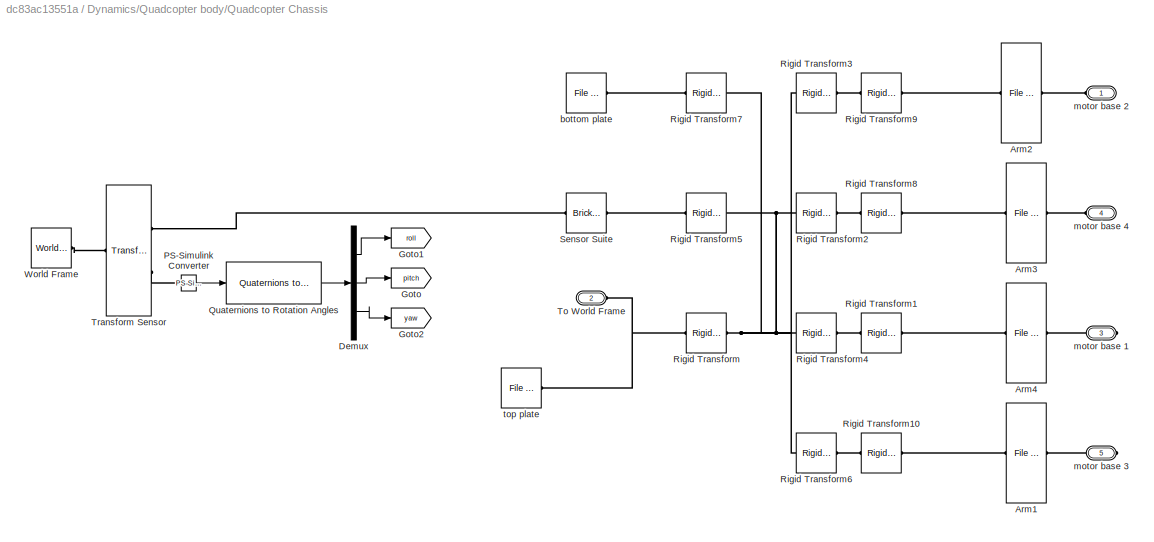
BLOCK [SubSystem] Dynamics/Quadcopter body/Quadcopter Chassis
  Ports = [0, 0, 0, 0, 0, 3, 2]
  RequestExecContextInheritance = off
BLOCK [Reference] Dynamics/Quadcopter body/Quadcopter Chassis/ Arm2   REF=sm_lib/Body Elements/File Solid
  Ports = [0, 0, 0, 0, 0, 1, 1]
  SourceBlock = sm_lib/Body Elements/File Solid
  SourceProductBaseCode = MS
  SourceType = File Solid
BLOCK [Reference] Dynamics/Quadcopter body/Quadcopter Chassis/ Arm4  REF=sm_lib/Body Elements/File Solid
  Ports = [0, 0, 0, 0, 0, 1, 1]
  SourceBlock = sm_lib/Body Elements/File Solid
  SourceProductBaseCode = MS
  SourceType = File Solid
BLOCK [Reference] Dynamics/Quadcopter body/Quadcopter Chassis/Arm1  REF=sm_lib/Body Elements/File Solid
  Ports = [0, 0, 0, 0, 0, 1, 1]
  SourceBlock = sm_lib/Body Elements/File Solid
  SourceProductBaseCode = MS
  SourceType = File Solid
BLOCK [Reference] Dynamics/Quadcopter body/Quadcopter Chassis/Arm3  REF=sm_lib/Body Elements/File Solid
  Ports = [0, 0, 0, 0, 0, 1, 1]
  SourceBlock = sm_lib/Body Elements/File Solid
  SourceProductBaseCode = MS
  SourceType = File Solid
BLOCK [Demux] Dynamics/Quadcopter body/Quadcopter Chassis/Demux
  Outputs = 3
  Ports = [1, 3]
BLOCK [Goto] Dynamics/Quadcopter body/Quadcopter Chassis/Goto
  GotoTag = pitch
  NameLocation = top
  TagVisibility = global
BLOCK [Goto] Dynamics/Quadcopter body/Quadcopter Chassis/Goto1
  GotoTag = roll
  TagVisibility = global
BLOCK [Goto] Dynamics/Quadcopter body/Quadcopter Chassis/Goto2
  GotoTag = yaw
  NameLocation = top
  TagVisibility = global
BLOCK [Reference] Dynamics/Quadcopter body/Quadcopter Chassis/PS-Simulink Converter  REF=nesl_utility/PS-Simulink
Converter
  Ports = [0, 1, 0, 0, 0, 1]
  SourceBlock = nesl_utility/PS-Simulink\nConverter
  SourceProductBaseCode = PW,SS
  SourceType = PS-Simulink\nConverter
BLOCK [Reference] Dynamics/Quadcopter body/Quadcopter Chassis/Quaternions to Rotation Angles  REF=sharedtransform/Quaternions to Rotation Angles
  AttributesFormatString = Rotation Order: %<rotationOrder>
  Ports = [1, 1]
  SourceBlock = sharedtransform/Quaternions to Rotation Angles
  SourceProductBaseCode = AE,PW,DR,MT,UV,VE
  SourceType = Quat2Ang
BLOCK [Reference] Dynamics/Quadcopter body/Quadcopter Chassis/Rigid Transform  REF=sm_lib/Frames and
Transforms/Rigid
Transform
  NameLocation = top
  Ports = [0, 0, 0, 0, 0, 1, 1]
  SourceBlock = sm_lib/Frames and\nTransforms/Rigid\nTransform
  SourceProductBaseCode = MS
  SourceType = Rigid\nTransform
BLOCK [Reference] Dynamics/Quadcopter body/Quadcopter Chassis/Rigid Transform1  REF=sm_lib/Frames and
Transforms/Rigid
Transform
  Ports = [0, 0, 0, 0, 0, 1, 1]
  SourceBlock = sm_lib/Frames and\nTransforms/Rigid\nTransform
  SourceProductBaseCode = MS
  SourceType = Rigid\nTransform
BLOCK [Reference] Dynamics/Quadcopter body/Quadcopter Chassis/Rigid Transform10  REF=sm_lib/Frames and
Transforms/Rigid
Transform
  Ports = [0, 0, 0, 0, 0, 1, 1]
  SourceBlock = sm_lib/Frames and\nTransforms/Rigid\nTransform
  SourceProductBaseCode = MS
  SourceType = Rigid\nTransform
BLOCK [Reference] Dynamics/Quadcopter body/Quadcopter Chassis/Rigid Transform2  REF=sm_lib/Frames and
Transforms/Rigid
Transform
  Ports = [0, 0, 0, 0, 0, 1, 1]
  SourceBlock = sm_lib/Frames and\nTransforms/Rigid\nTransform
  SourceProductBaseCode = MS
  SourceType = Rigid\nTransform
BLOCK [Reference] Dynamics/Quadcopter body/Quadcopter Chassis/Rigid Transform3  REF=sm_lib/Frames and
Transforms/Rigid
Transform
  Ports = [0, 0, 0, 0, 0, 1, 1]
  SourceBlock = sm_lib/Frames and\nTransforms/Rigid\nTransform
  SourceProductBaseCode = MS
  SourceType = Rigid\nTransform
BLOCK [Reference] Dynamics/Quadcopter body/Quadcopter Chassis/Rigid Transform4  REF=sm_lib/Frames and
Transforms/Rigid
Transform
  Ports = [0, 0, 0, 0, 0, 1, 1]
  SourceBlock = sm_lib/Frames and\nTransforms/Rigid\nTransform
  SourceProductBaseCode = MS
  SourceType = Rigid\nTransform
BLOCK [Reference] Dynamics/Quadcopter body/Quadcopter Chassis/Rigid Transform5  REF=sm_lib/Frames and
Transforms/Rigid
Transform
  NameLocation = top
  Ports = [0, 0, 0, 0, 0, 1, 1]
  SourceBlock = sm_lib/Frames and\nTransforms/Rigid\nTransform
  SourceProductBaseCode = MS
  SourceType = Rigid\nTransform
BLOCK [Reference] Dynamics/Quadcopter body/Quadcopter Chassis/Rigid Transform6  REF=sm_lib/Frames and
Transforms/Rigid
Transform
  Ports = [0, 0, 0, 0, 0, 1, 1]
  SourceBlock = sm_lib/Frames and\nTransforms/Rigid\nTransform
  SourceProductBaseCode = MS
  SourceType = Rigid\nTransform
BLOCK [Reference] Dynamics/Quadcopter body/Quadcopter Chassis/Rigid Transform7  REF=sm_lib/Frames and
Transforms/Rigid
Transform
  NameLocation = top
  Ports = [0, 0, 0, 0, 0, 1, 1]
  SourceBlock = sm_lib/Frames and\nTransforms/Rigid\nTransform
  SourceProductBaseCode = MS
  SourceType = Rigid\nTransform
BLOCK [Reference] Dynamics/Quadcopter body/Quadcopter Chassis/Rigid Transform8  REF=sm_lib/Frames and
Transforms/Rigid
Transform
  Ports = [0, 0, 0, 0, 0, 1, 1]
  SourceBlock = sm_lib/Frames and\nTransforms/Rigid\nTransform
  SourceProductBaseCode = MS
  SourceType = Rigid\nTransform
BLOCK [Reference] Dynamics/Quadcopter body/Quadcopter Chassis/Rigid Transform9  REF=sm_lib/Frames and
Transforms/Rigid
Transform
  Ports = [0, 0, 0, 0, 0, 1, 1]
  SourceBlock = sm_lib/Frames and\nTransforms/Rigid\nTransform
  SourceProductBaseCode = MS
  SourceType = Rigid\nTransform
BLOCK [Reference] Dynamics/Quadcopter body/Quadcopter Chassis/Sensor Suite  REF=sm_lib/Body Elements/Brick Solid
  Ports = [0, 0, 0, 0, 0, 1, 1]
  SourceBlock = sm_lib/Body Elements/Brick Solid
  SourceProductBaseCode = MS
  SourceType = Brick Solid
BLOCK [PMIOPort] Dynamics/Quadcopter body/Quadcopter Chassis/To World Frame
  Port = 2
  Side = Left
BLOCK [Reference] Dynamics/Quadcopter body/Quadcopter Chassis/Transform Sensor  REF=sm_lib/Frames and
Transforms/Transform
Sensor
  Ports = [0, 0, 0, 0, 0, 1, 2]
  SourceBlock = sm_lib/Frames and\nTransforms/Transform\nSensor
  SourceProductBaseCode = MS
  SourceType = Transform\nSensor
BLOCK [Reference] Dynamics/Quadcopter body/Quadcopter Chassis/World Frame  REF=sm_lib/Frames and
Transforms/World Frame
  Ports = [0, 0, 0, 0, 0, 0, 1]
  SourceBlock = sm_lib/Frames and\nTransforms/World Frame
  SourceProductBaseCode = MS
  SourceType = World Frame
BLOCK [Reference] Dynamics/Quadcopter body/Quadcopter Chassis/bottom plate  REF=sm_lib/Body Elements/File Solid
  Ports = [0, 0, 0, 0, 0, 0, 1]
  SourceBlock = sm_lib/Body Elements/File Solid
  SourceProductBaseCode = MS
  SourceType = File Solid
BLOCK [PMIOPort] Dynamics/Quadcopter body/Quadcopter Chassis/motor base 1 
  Port = 3
  Side = Right
BLOCK [PMIOPort] Dynamics/Quadcopter body/Quadcopter Chassis/motor base 2
  Side = Left
BLOCK [PMIOPort] Dynamics/Quadcopter body/Quadcopter Chassis/motor base 3
  Port = 5
  Side = Right
BLOCK [PMIOPort] Dynamics/Quadcopter body/Quadcopter Chassis/motor base 4
  Port = 4
  Side = Left
BLOCK [Reference] Dynamics/Quadcopter body/Quadcopter Chassis/top plate   REF=sm_lib/Body Elements/File Solid
  Ports = [0, 0, 0, 0, 0, 0, 1]
  SourceBlock = sm_lib/Body Elements/File Solid
  SourceProductBaseCode = MS
  SourceType = File Solid
BLOCK [PMIOPort] Dynamics/Quadcopter body/To World Frame
  Side = Right
BLOCK [Reference] Dynamics/Rigid Transform  REF=sm_lib/Frames and
Transforms/Rigid
Transform
  NameLocation = left
  Ports = [0, 0, 0, 0, 0, 1, 1]
  SourceBlock = sm_lib/Frames and\nTransforms/Rigid\nTransform
  SourceProductBaseCode = MS
  SourceType = Rigid\nTransform
BLOCK [Reference] Dynamics/Simulink-PS Converter  REF=nesl_utility/Simulink-PS
Converter
  Ports = [1, 0, 0, 0, 0, 0, 1]
  SourceBlock = nesl_utility/Simulink-PS\nConverter
  SourceProductBaseCode = PW,SS
  SourceType = Simulink-PS\nConverter
BLOCK [Reference] Dynamics/Simulink-PS Converter2  REF=nesl_utility/Simulink-PS
Converter
  Ports = [1, 0, 0, 0, 0, 0, 1]
  SourceBlock = nesl_utility/Simulink-PS\nConverter
  SourceProductBaseCode = PW,SS
  SourceType = Simulink-PS\nConverter
BLOCK [Reference] Dynamics/Solver Configuration  REF=nesl_utility/Solver
Configuration
  Ports = [0, 0, 0, 0, 0, 0, 1]
  SourceBlock = nesl_utility/Solver\nConfiguration
  SourceProductBaseCode = PW,SS
  SourceType = Solver\nConfiguration
BLOCK [Reference] Dynamics/Transform Sensor1  REF=sm_lib/Frames and
Transforms/Transform
Sensor
  Ports = [0, 0, 0, 0, 0, 1, 8]
  SourceBlock = sm_lib/Frames and\nTransforms/Transform\nSensor
  SourceProductBaseCode = MS
  SourceType = Transform\nSensor
BLOCK [Outport] Dynamics/Velocity Vector
  Port = 2
BLOCK [SubSystem] Dynamics/Wind Disturbance1
  Ports = [0, 1]
  RequestExecContextInheritance = off
BLOCK [Constant] Dynamics/Wind Disturbance1/Air Cross Sec-Area
  NameLocation = top
  Value = 0.01
BLOCK [Constant] Dynamics/Wind Disturbance1/Air Density
  NameLocation = top
  Value = 1.299
BLOCK [Constant] Dynamics/Wind Disturbance1/Constant
  Value = hei
BLOCK [Reference] Dynamics/Wind Disturbance1/Horizontal Wind Model1  REF=aerolibwind2/Horizontal Wind Model
  NameLocation = top
  Ports = [1, 1]
  SourceBlock = aerolibwind2/Horizontal Wind Model
  SourceProductBaseCode = AE
  SourceType = Horizontal Wind Model
BLOCK [IdentityMatrix] Dynamics/Wind Disturbance1/IdentityMatrix
  NameLocation = top
  OutputDimensions = 3
  Ports = [0, 1]
BLOCK [Outport] Dynamics/Wind Disturbance1/Out1
BLOCK [Product] Dynamics/Wind Disturbance1/Product
  Inputs = 3
  NameLocation = top
  Ports = [3, 1]
BLOCK [DiscretePulseGenerator] Dynamics/Wind Disturbance1/Pulse Generator
  NameLocation = top
  Period = 10
  Ports = [0, 1]
  PulseType = Time based
  PulseWidth = 50
BLOCK [Math] Dynamics/Wind Disturbance1/Square
  Operator = square
  Ports = [1, 1]
BLOCK [Switch] Dynamics/Wind Disturbance1/Switch
  Criteria = u2 > Threshold
  InputSameDT = off
  NameLocation = top
  SaturateOnIntegerOverflow = off
BLOCK [Reference] Dynamics/Wind Disturbance1/Wind Shear Model1  REF=aerolibwind2/Wind Shear Model
  NameLocation = top
  Ports = [2, 1]
  SourceBlock = aerolibwind2/Wind Shear Model
  SourceProductBaseCode = AE
  SourceType = Wind Shear Model
BLOCK [Reference] Dynamics/World Frame  REF=sm_lib/Frames and
Transforms/World Frame
  Ports = [0, 0, 0, 0, 0, 0, 1]
  SourceBlock = sm_lib/Frames and\nTransforms/World Frame
  SourceProductBaseCode = MS
  SourceType = World Frame
ANNOTATION Control/Altitude Controller: Hovering speed min
ANNOTATION Control/Position Controller: PID control for Attitude
ANNOTATION Dynamics: Linear Drag Force
ANNOTATION Dynamics: Wind Force
ANNOTATION Dynamics/Quadcopter body/Motor Propeller 2: Thrust force
ANNOTATION Dynamics/Quadcopter body/Motor Propeller 2/Propeller Thrust Calculator: Thrust equation T=k*omega^2
ANNOTATION Dynamics/Quadcopter body/Motor Propeller 4: Thrust force
ANNOTATION Dynamics/Wind Disturbance1: Pulse of Wind
LINE Control/Altitude Controller/Add:1 -> Control/Altitude Controller/PID Controller2:1
LINE Control/Altitude Controller/Constant:1 -> Control/Altitude Controller/Sum:2
LINE Control/Altitude Controller/Gain3:1 -> Control/Altitude Controller/Sum:1
LINE Control/Altitude Controller/PID Controller2:1 -> Control/Altitude Controller/Gain3:1
LINE Control/Altitude Controller/Sum:1 -> Control/Altitude Controller/Throttle:1
LINE Control/Altitude Controller/altitude_actual1:1 -> Control/Altitude Controller/Add:2
LINE Control/Altitude Controller/altitude_desired:1 -> Control/Altitude Controller/Add:1
LINE Control/Altitude Controller:1 -> Control/Motor Mixer:4
LINE Control/Altitude Generator/Add:1 -> Control/Altitude Generator/Mux:3
LINE Control/Altitude Generator/Altitude:1 -> Control/Altitude Generator/Add:2
LINE Control/Altitude Generator/Demux:1 -> Control/Altitude Generator/Mux:1
LINE Control/Altitude Generator/Demux:2 -> Control/Altitude Generator/Mux:2
LINE Control/Altitude Generator/Demux:3 -> Control/Altitude Generator/Add:1
LINE Control/Altitude Generator/Destination Velocity:1 -> Control/Altitude Generator/vel_des:1
LINE Control/Altitude Generator/Home Position:1 -> Control/Altitude Generator/Transpose:1
LINE Control/Altitude Generator/Mux:1 -> Control/Altitude Generator/Transpose1:1
LINE Control/Altitude Generator/Transpose1:1 -> Control/Altitude Generator/pos_des:1
LINE Control/Altitude Generator/Transpose:1 -> Control/Altitude Generator/Demux:1
LINE Control/Altitude Generator/Yaw Destination:1 -> Control/Altitude Generator/yaw_des:1
NET Control/Altitude Generator:1 -> Control/Demux:1, Control/Position Controller:1
LINE Control/Altitude Generator:2 -> Control/Position Controller:2
LINE Control/Altitude Generator:3 -> Control/Position Controller:3
LINE Control/Angle Quaternion:1 -> Control/Position Controller:6
LINE Control/Demux1:1 -> Control/Goto1:1
LINE Control/Demux1:2 -> Control/Goto6:1
NET Control/Demux1:3 -> Control/Altitude Controller:2, Control/Goto4:1
LINE Control/Demux:1 -> Control/Goto2:1
LINE Control/Demux:2 -> Control/Goto3:1
NET Control/Demux:3 -> Control/Goto5:1, Control/Transfer Fcn:1
LINE Control/Home Position:1 -> Control/Altitude Generator:1
LINE Control/Motor Mixer/Add4:1 -> Control/Motor Mixer/motor1:1
LINE Control/Motor Mixer/Add5:1 -> Control/Motor Mixer/motor2:1
LINE Control/Motor Mixer/Add6:1 -> Control/Motor Mixer/motor4:1
LINE Control/Motor Mixer/Add7:1 -> Control/Motor Mixer/motor3:1
NET Control/Motor Mixer/Pitch Control:1 -> Control/Motor Mixer/Add4:2, Control/Motor Mixer/Add5:2, Control/Motor Mixer/Add6:2, Control/Motor Mixer/Add7:2
NET Control/Motor Mixer/Roll Control:1 -> Control/Motor Mixer/Add4:1, Control/Motor Mixer/Add5:1, Control/Motor Mixer/Add6:1, Control/Motor Mixer/Add7:1
NET Control/Motor Mixer/Throttle Control:1 -> Control/Motor Mixer/Add4:4, Control/Motor Mixer/Add5:4, Control/Motor Mixer/Add6:4, Control/Motor Mixer/Add7:4
NET Control/Motor Mixer/Yaw Control:1 -> Control/Motor Mixer/Add4:3, Control/Motor Mixer/Add5:3, Control/Motor Mixer/Add6:3, Control/Motor Mixer/Add7:3
LINE Control/Motor Mixer:1 -> Control/Desired rpm Motor 2:1
LINE Control/Motor Mixer:2 -> Control/Desired rpm Motor 1:1
LINE Control/Motor Mixer:3 -> Control/Desired rpm Motor 4:1
LINE Control/Motor Mixer:4 -> Control/Desired rpm Motor 3:1
LINE Control/Position Controller/Add2:1 -> Control/Position Controller/PID Controller4:1
LINE Control/Position Controller/Add3:1 -> Control/Position Controller/PID Controller6:1
LINE Control/Position Controller/Add7:1 -> Control/Position Controller/PID Controller5:1
NET Control/Position Controller/Angle Quaternion:1 -> Control/Position Controller/Quaternions to Rotation Angles:1, Control/Position Controller/Roll Pitch Yaw Controller:6
LINE Control/Position Controller/Demux:1 -> Control/Position Controller/Add2:2
LINE Control/Position Controller/Demux:2 -> Control/Position Controller/Add7:2
LINE Control/Position Controller/Demux:3 -> Control/Position Controller/Add3:2
LINE Control/Position Controller/Gain9:1 -> Control/Position Controller/Goto2:1
LINE Control/Position Controller/PID Controller4:1 -> Control/Position Controller/Roll Control:1
LINE Control/Position Controller/PID Controller5:1 -> Control/Position Controller/Pitch Control:1
LINE Control/Position Controller/PID Controller6:1 -> Control/Position Controller/Yaw Control:1
LINE Control/Position Controller/Quaternions to Rotation Angles:1 -> Control/Position Controller/Demux:1
LINE Control/Position Controller/Roll Pitch Yaw Controller/Current Postion:1 -> Control/Position Controller/Roll Pitch Yaw Controller/Subtract1:2
LINE Control/Position Controller/Roll Pitch Yaw Controller/Current Velocity:1 -> Control/Position Controller/Roll Pitch Yaw Controller/Subtract:2
LINE Control/Position Controller/Roll Pitch Yaw Controller/Demux:1 -> Control/Position Controller/Roll Pitch Yaw Controller/Gain1:1
LINE Control/Position Controller/Roll Pitch Yaw Controller/Demux:2 -> Control/Position Controller/Roll Pitch Yaw Controller/Gain2:1
LINE Control/Position Controller/Roll Pitch Yaw Controller/Demux:3 -> Control/Position Controller/Roll Pitch Yaw Controller/Gain3:1
LINE Control/Position Controller/Roll Pitch Yaw Controller/Desired Velocity:1 -> Control/Position Controller/Roll Pitch Yaw Controller/Subtract:1
LINE Control/Position Controller/Roll Pitch Yaw Controller/Destination Position:1 -> Control/Position Controller/Roll Pitch Yaw Controller/Subtract1:1
LINE Control/Position Controller/Roll Pitch Yaw Controller/Destination Yaw:1 -> Control/Position Controller/Roll Pitch Yaw Controller/Subtract3:2
LINE Control/Position Controller/Roll Pitch Yaw Controller/Gain1:1 -> Control/Position Controller/Roll Pitch Yaw Controller/Gain4:1
LINE Control/Position Controller/Roll Pitch Yaw Controller/Gain2:1 -> Control/Position Controller/Roll Pitch Yaw Controller/Gain5:1
LINE Control/Position Controller/Roll Pitch Yaw Controller/Gain3:1 -> Control/Position Controller/Roll Pitch Yaw Controller/Subtract3:1
LINE Control/Position Controller/Roll Pitch Yaw Controller/Gain4:1 -> Control/Position Controller/Roll Pitch Yaw Controller/Destination_Pitch:1
LINE Control/Position Controller/Roll Pitch Yaw Controller/Gain5:1 -> Control/Position Controller/Roll Pitch Yaw Controller/Destination_Roll:1
LINE Control/Position Controller/Roll Pitch Yaw Controller/Gain:1 -> Control/Position Controller/Roll Pitch Yaw Controller/Subtract2:1
LINE Control/Position Controller/Roll Pitch Yaw Controller/Quaternion Inverse:1 -> Control/Position Controller/Roll Pitch Yaw Controller/Quaternion Rotation:1
NET Control/Position Controller/Roll Pitch Yaw Controller/Quaternion Rotation:1 -> Control/Position Controller/Roll Pitch Yaw Controller/Demux:1, Control/Position Controller/Roll Pitch Yaw Controller/Scope:1
LINE Control/Position Controller/Roll Pitch Yaw Controller/RPY:1 -> Control/Position Controller/Roll Pitch Yaw Controller/Quaternion Inverse:1
LINE Control/Position Controller/Roll Pitch Yaw Controller/Subtract1:1 -> Control/Position Controller/Roll Pitch Yaw Controller/Gain:1
LINE Control/Position Controller/Roll Pitch Yaw Controller/Subtract2:1 -> Control/Position Controller/Roll Pitch Yaw Controller/Quaternion Rotation:2
LINE Control/Position Controller/Roll Pitch Yaw Controller/Subtract3:1 -> Control/Position Controller/Roll Pitch Yaw Controller/Destionation_Yaw:1
LINE Control/Position Controller/Roll Pitch Yaw Controller/Subtract:1 -> Control/Position Controller/Roll Pitch Yaw Controller/Subtract2:2
LINE Control/Position Controller/Roll Pitch Yaw Controller:1 -> Control/Position Controller/Saturation3:1
LINE Control/Position Controller/Roll Pitch Yaw Controller:2 -> Control/Position Controller/Saturation1:1
LINE Control/Position Controller/Roll Pitch Yaw Controller:3 -> Control/Position Controller/Saturation2:1
NET Control/Position Controller/Saturation1:1 -> Control/Position Controller/Add2:1, Control/Position Controller/Goto1:1
NET Control/Position Controller/Saturation2:1 -> Control/Position Controller/Add3:1, Control/Position Controller/Gain9:1
NET Control/Position Controller/Saturation3:1 -> Control/Position Controller/Add7:1, Control/Position Controller/Goto:1
LINE Control/Position Controller/pos:1 -> Control/Position Controller/Roll Pitch Yaw Controller:4
LINE Control/Position Controller/pos_des:1 -> Control/Position Controller/Roll Pitch Yaw Controller:1
LINE Control/Position Controller/vel:1 -> Control/Position Controller/Roll Pitch Yaw Controller:5
LINE Control/Position Controller/vel_des:1 -> Control/Position Controller/Roll Pitch Yaw Controller:2
LINE Control/Position Controller/yaw_des:1 -> Control/Position Controller/Roll Pitch Yaw Controller:3
LINE Control/Position Controller:1 -> Control/Motor Mixer:1
LINE Control/Position Controller:2 -> Control/Motor Mixer:2
LINE Control/Position Controller:3 -> Control/Motor Mixer:3
NET Control/Position Vector:1 -> Control/Demux1:1, Control/Position Controller:4
LINE Control/Results /From10:1 -> Control/Results /Mux2:2
LINE Control/Results /From19:1 -> Control/Results /Mux3:1
LINE Control/Results /From1:1 -> Control/Results /Propeller Thrust:2
LINE Control/Results /From20:1 -> Control/Results /Mux4:1
LINE Control/Results /From21:1 -> Control/Results /Mux5:1
LINE Control/Results /From22:1 -> Control/Results /Mux3:2
LINE Control/Results /From23:1 -> Control/Results /Mux4:2
LINE Control/Results /From24:1 -> Control/Results /Mux5:2
LINE Control/Results /From25:1 -> Control/Results /Mux1:2
LINE Control/Results /From26:1 -> Control/Results /Mux1:1
LINE Control/Results /From27:1 -> Control/Results /Mux:2
LINE Control/Results /From28:1 -> Control/Results /Mux:1
LINE Control/Results /From2:1 -> Control/Results /Propeller Thrust:3
LINE Control/Results /From3:1 -> Control/Results /Propeller Thrust:4
LINE Control/Results /From4:1 -> Control/Results /Propeller Speed:1
LINE Control/Results /From5:1 -> Control/Results /Propeller Speed:2
LINE Control/Results /From6:1 -> Control/Results /Propeller Speed:3
LINE Control/Results /From7:1 -> Control/Results /Propeller Speed:4
LINE Control/Results /From9:1 -> Control/Results /Mux2:1
LINE Control/Results /From:1 -> Control/Results /Propeller Thrust:1
LINE Control/Results /Mux1:1 -> Control/Results /Position of the Quadcopter:2
LINE Control/Results /Mux2:1 -> Control/Results /Position of the Quadcopter:3
LINE Control/Results /Mux3:1 -> Control/Results /Attitude of the Quadcopter:1
LINE Control/Results /Mux4:1 -> Control/Results /Attitude of the Quadcopter:2
LINE Control/Results /Mux5:1 -> Control/Results /Attitude of the Quadcopter:3
LINE Control/Results /Mux:1 -> Control/Results /Position of the Quadcopter:1
LINE Control/Transfer Fcn:1 -> Control/Altitude Controller:1
LINE Control/Velocity Vector:1 -> Control/Position Controller:5
LINE Control:1 -> Dynamics:1
LINE Control:2 -> Dynamics:2
LINE Control:3 -> Dynamics:3
LINE Control:4 -> Dynamics:4
LINE Dynamics/Constant2:1 -> Dynamics/Mux2:1
LINE Dynamics/Constant3:1 -> Dynamics/Mux2:2
LINE Dynamics/Constant4:1 -> Dynamics/Mux2:3
LINE Dynamics/Desired rpm Motor 1 :1 -> Dynamics/Quadcopter body:2
LINE Dynamics/Desired rpm Motor 2:1 -> Dynamics/Quadcopter body:1
LINE Dynamics/Desired rpm Motor 3:1 -> Dynamics/Quadcopter body:4
LINE Dynamics/Desired rpm Motor 4:1 -> Dynamics/Quadcopter body:3
LINE Dynamics/MatrixMultiply:1 -> Dynamics/Simulink-PS Converter2:1
NET Dynamics/Mux1:1 -> Dynamics/MatrixMultiply:1, Dynamics/Velocity Vector:1
LINE Dynamics/Mux2:1 -> Dynamics/MatrixMultiply:2
LINE Dynamics/Mux:1 -> Dynamics/Position Vector:1
LINE Dynamics/PS-Simulink Converter1:1 -> Dynamics/Angle Quaternion:1
LINE Dynamics/PS-Simulink Converter2:1 -> Dynamics/Mux:1
LINE Dynamics/PS-Simulink Converter3:1 -> Dynamics/Mux1:2
LINE Dynamics/PS-Simulink Converter4:1 -> Dynamics/Mux:2
LINE Dynamics/PS-Simulink Converter5:1 -> Dynamics/Mux1:3
LINE Dynamics/PS-Simulink Converter6:1 -> Dynamics/Mux1:1
LINE Dynamics/PS-Simulink Converter:1 -> Dynamics/Mux:3
LINE Dynamics/Quadcopter body/Desired rpm Motor 1 :1 -> Dynamics/Quadcopter body/Motor Propeller 1:1
LINE Dynamics/Quadcopter body/Desired rpm Motor 2:1 -> Dynamics/Quadcopter body/Motor Propeller 2:1
LINE Dynamics/Quadcopter body/Desired rpm Motor 3:1 -> Dynamics/Quadcopter body/Motor Propeller 3 :1
LINE Dynamics/Quadcopter body/Desired rpm Motor 4:1 -> Dynamics/Quadcopter body/Motor Propeller 4:1
LINE Dynamics/Quadcopter body/Motor Propeller 1/Abs:1 -> Dynamics/Quadcopter body/Motor Propeller 1/Gain2:1
LINE Dynamics/Quadcopter body/Motor Propeller 1/Desired rpm Motor 1:1 -> Dynamics/Quadcopter body/Motor Propeller 1/Saturation1:1
LINE Dynamics/Quadcopter body/Motor Propeller 1/Gain1:1 -> Dynamics/Quadcopter body/Motor Propeller 1/Goto:1
LINE Dynamics/Quadcopter body/Motor Propeller 1/Gain2:1 -> Dynamics/Quadcopter body/Motor Propeller 1/Simulink-PS Converter1:1
NET Dynamics/Quadcopter body/Motor Propeller 1/PS-Simulink Converter1:1 -> Dynamics/Quadcopter body/Motor Propeller 1/Abs:1, Dynamics/Quadcopter body/Motor Propeller 1/Gain1:1
LINE Dynamics/Quadcopter body/Motor Propeller 1/PS-Simulink Converter2:1 -> Dynamics/Quadcopter body/Motor Propeller 1/Thrust Coefficient Calculator:1
LINE Dynamics/Quadcopter body/Motor Propeller 1/Saturation1:1 -> Dynamics/Quadcopter body/Motor Propeller 1/Simulink-PS Converter:1
LINE Dynamics/Quadcopter body/Motor Propeller 1/Thrust Coefficient Calculator/Add:1 -> Dynamics/Quadcopter body/Motor Propeller 1/Thrust Coefficient Calculator/Simulink-PS Converter:1
LINE Dynamics/Quadcopter body/Motor Propeller 1/Thrust Coefficient Calculator/Constant:1 -> Dynamics/Quadcopter body/Motor Propeller 1/Thrust Coefficient Calculator/Add:3
LINE Dynamics/Quadcopter body/Motor Propeller 1/Thrust Coefficient Calculator/Gain1:1 -> Dynamics/Quadcopter body/Motor Propeller 1/Thrust Coefficient Calculator/Add:2
LINE Dynamics/Quadcopter body/Motor Propeller 1/Thrust Coefficient Calculator/Gain4:1 -> Dynamics/Quadcopter body/Motor Propeller 1/Thrust Coefficient Calculator/Add:1
LINE Dynamics/Quadcopter body/Motor Propeller 1/Thrust Coefficient Calculator/Math Function:1 -> Dynamics/Quadcopter body/Motor Propeller 1/Thrust Coefficient Calculator/Gain4:1
NET Dynamics/Quadcopter body/Motor Propeller 1/Thrust Coefficient Calculator/m//s:1 -> Dynamics/Quadcopter body/Motor Propeller 1/Thrust Coefficient Calculator/Gain1:1, Dynamics/Quadcopter body/Motor Propeller 1/Thrust Coefficient Calculator/Math Function:1
LINE Dynamics/Quadcopter body/Motor Propeller 2/Abs:1 -> Dynamics/Quadcopter body/Motor Propeller 2/Gain2:1
LINE Dynamics/Quadcopter body/Motor Propeller 2/Desired rpm Motor 2:1 -> Dynamics/Quadcopter body/Motor Propeller 2/Saturation1:1
LINE Dynamics/Quadcopter body/Motor Propeller 2/Gain1:1 -> Dynamics/Quadcopter body/Motor Propeller 2/Goto:1
LINE Dynamics/Quadcopter body/Motor Propeller 2/Gain2:1 -> Dynamics/Quadcopter body/Motor Propeller 2/Simulink-PS Converter1:1
NET Dynamics/Quadcopter body/Motor Propeller 2/PS-Simulink Converter1:1 -> Dynamics/Quadcopter body/Motor Propeller 2/Abs:1, Dynamics/Quadcopter body/Motor Propeller 2/Gain1:1
LINE Dynamics/Quadcopter body/Motor Propeller 2/PS-Simulink Converter2:1 -> Dynamics/Quadcopter body/Motor Propeller 2/Thrust Coefficient Calculator:1
LINE Dynamics/Quadcopter body/Motor Propeller 2/Propeller Thrust Calculator/PS-Simulink Converter:1 -> Dynamics/Quadcopter body/Motor Propeller 2/Propeller Thrust Calculator/Scope:1
LINE Dynamics/Quadcopter body/Motor Propeller 2/Saturation1:1 -> Dynamics/Quadcopter body/Motor Propeller 2/Simulink-PS Converter:1
LINE Dynamics/Quadcopter body/Motor Propeller 2/Thrust Coefficient Calculator/Add:1 -> Dynamics/Quadcopter body/Motor Propeller 2/Thrust Coefficient Calculator/Simulink-PS Converter:1
LINE Dynamics/Quadcopter body/Motor Propeller 2/Thrust Coefficient Calculator/Constant:1 -> Dynamics/Quadcopter body/Motor Propeller 2/Thrust Coefficient Calculator/Add:3
LINE Dynamics/Quadcopter body/Motor Propeller 2/Thrust Coefficient Calculator/Gain1:1 -> Dynamics/Quadcopter body/Motor Propeller 2/Thrust Coefficient Calculator/Add:2
LINE Dynamics/Quadcopter body/Motor Propeller 2/Thrust Coefficient Calculator/Gain4:1 -> Dynamics/Quadcopter body/Motor Propeller 2/Thrust Coefficient Calculator/Add:1
LINE Dynamics/Quadcopter body/Motor Propeller 2/Thrust Coefficient Calculator/Math Function:1 -> Dynamics/Quadcopter body/Motor Propeller 2/Thrust Coefficient Calculator/Gain4:1
NET Dynamics/Quadcopter body/Motor Propeller 2/Thrust Coefficient Calculator/m//s:1 -> Dynamics/Quadcopter body/Motor Propeller 2/Thrust Coefficient Calculator/Gain1:1, Dynamics/Quadcopter body/Motor Propeller 2/Thrust Coefficient Calculator/Math Function:1
LINE Dynamics/Quadcopter body/Motor Propeller 3 /Abs:1 -> Dynamics/Quadcopter body/Motor Propeller 3 /Gain2:1
LINE Dynamics/Quadcopter body/Motor Propeller 3 /Desired rpm Motor 3:1 -> Dynamics/Quadcopter body/Motor Propeller 3 /Saturation1:1
LINE Dynamics/Quadcopter body/Motor Propeller 3 /Gain1:1 -> Dynamics/Quadcopter body/Motor Propeller 3 /Goto1:1
LINE Dynamics/Quadcopter body/Motor Propeller 3 /Gain2:1 -> Dynamics/Quadcopter body/Motor Propeller 3 /Simulink-PS Converter1:1
LINE Dynamics/Quadcopter body/Motor Propeller 3 /PS-Simulink Converter1:1 -> Dynamics/Quadcopter body/Motor Propeller 3 /Thrust Coefficient Calculator:1
NET Dynamics/Quadcopter body/Motor Propeller 3 /PS-Simulink Converter2:1 -> Dynamics/Quadcopter body/Motor Propeller 3 /Abs:1, Dynamics/Quadcopter body/Motor Propeller 3 /Gain1:1
LINE Dynamics/Quadcopter body/Motor Propeller 3 /Saturation1:1 -> Dynamics/Quadcopter body/Motor Propeller 3 /Simulink-PS Converter:1
LINE Dynamics/Quadcopter body/Motor Propeller 3 /Thrust Coefficient Calculator/Add:1 -> Dynamics/Quadcopter body/Motor Propeller 3 /Thrust Coefficient Calculator/Simulink-PS Converter:1
LINE Dynamics/Quadcopter body/Motor Propeller 3 /Thrust Coefficient Calculator/Constant:1 -> Dynamics/Quadcopter body/Motor Propeller 3 /Thrust Coefficient Calculator/Add:3
LINE Dynamics/Quadcopter body/Motor Propeller 3 /Thrust Coefficient Calculator/Gain1:1 -> Dynamics/Quadcopter body/Motor Propeller 3 /Thrust Coefficient Calculator/Add:2
LINE Dynamics/Quadcopter body/Motor Propeller 3 /Thrust Coefficient Calculator/Gain4:1 -> Dynamics/Quadcopter body/Motor Propeller 3 /Thrust Coefficient Calculator/Add:1
LINE Dynamics/Quadcopter body/Motor Propeller 3 /Thrust Coefficient Calculator/Math Function:1 -> Dynamics/Quadcopter body/Motor Propeller 3 /Thrust Coefficient Calculator/Gain4:1
NET Dynamics/Quadcopter body/Motor Propeller 3 /Thrust Coefficient Calculator/m//s:1 -> Dynamics/Quadcopter body/Motor Propeller 3 /Thrust Coefficient Calculator/Gain1:1, Dynamics/Quadcopter body/Motor Propeller 3 /Thrust Coefficient Calculator/Math Function:1
LINE Dynamics/Quadcopter body/Motor Propeller 4/Abs:1 -> Dynamics/Quadcopter body/Motor Propeller 4/Gain2:1
LINE Dynamics/Quadcopter body/Motor Propeller 4/Desired rpm Motor 4:1 -> Dynamics/Quadcopter body/Motor Propeller 4/Saturation1:1
LINE Dynamics/Quadcopter body/Motor Propeller 4/Gain1:1 -> Dynamics/Quadcopter body/Motor Propeller 4/Goto1:1
LINE Dynamics/Quadcopter body/Motor Propeller 4/Gain2:1 -> Dynamics/Quadcopter body/Motor Propeller 4/Simulink-PS Converter1:1
LINE Dynamics/Quadcopter body/Motor Propeller 4/PS-Simulink Converter1:1 -> Dynamics/Quadcopter body/Motor Propeller 4/Thrust Coefficient Calculator:1
NET Dynamics/Quadcopter body/Motor Propeller 4/PS-Simulink Converter2:1 -> Dynamics/Quadcopter body/Motor Propeller 4/Abs:1, Dynamics/Quadcopter body/Motor Propeller 4/Gain1:1
LINE Dynamics/Quadcopter body/Motor Propeller 4/Saturation1:1 -> Dynamics/Quadcopter body/Motor Propeller 4/Simulink-PS Converter:1
LINE Dynamics/Quadcopter body/Motor Propeller 4/Thrust Coefficient Calculator/Add:1 -> Dynamics/Quadcopter body/Motor Propeller 4/Thrust Coefficient Calculator/Simulink-PS Converter:1
LINE Dynamics/Quadcopter body/Motor Propeller 4/Thrust Coefficient Calculator/Constant:1 -> Dynamics/Quadcopter body/Motor Propeller 4/Thrust Coefficient Calculator/Add:3
LINE Dynamics/Quadcopter body/Motor Propeller 4/Thrust Coefficient Calculator/Gain1:1 -> Dynamics/Quadcopter body/Motor Propeller 4/Thrust Coefficient Calculator/Add:2
LINE Dynamics/Quadcopter body/Motor Propeller 4/Thrust Coefficient Calculator/Gain4:1 -> Dynamics/Quadcopter body/Motor Propeller 4/Thrust Coefficient Calculator/Add:1
LINE Dynamics/Quadcopter body/Motor Propeller 4/Thrust Coefficient Calculator/Math Function:1 -> Dynamics/Quadcopter body/Motor Propeller 4/Thrust Coefficient Calculator/Gain4:1
NET Dynamics/Quadcopter body/Motor Propeller 4/Thrust Coefficient Calculator/m//s:1 -> Dynamics/Quadcopter body/Motor Propeller 4/Thrust Coefficient Calculator/Gain1:1, Dynamics/Quadcopter body/Motor Propeller 4/Thrust Coefficient Calculator/Math Function:1
LINE Dynamics/Quadcopter body/PS-Simulink Converter1:1 -> Dynamics/Quadcopter body/Goto1:1
LINE Dynamics/Quadcopter body/PS-Simulink Converter2:1 -> Dynamics/Quadcopter body/Goto2:1
LINE Dynamics/Quadcopter body/PS-Simulink Converter3:1 -> Dynamics/Quadcopter body/Goto3:1
LINE Dynamics/Quadcopter body/PS-Simulink Converter:1 -> Dynamics/Quadcopter body/Goto:1
LINE Dynamics/Quadcopter body/Quadcopter Chassis/Demux:1 -> Dynamics/Quadcopter body/Quadcopter Chassis/Goto1:1
LINE Dynamics/Quadcopter body/Quadcopter Chassis/Demux:2 -> Dynamics/Quadcopter body/Quadcopter Chassis/Goto:1
LINE Dynamics/Quadcopter body/Quadcopter Chassis/Demux:3 -> Dynamics/Quadcopter body/Quadcopter Chassis/Goto2:1
LINE Dynamics/Quadcopter body/Quadcopter Chassis/PS-Simulink Converter:1 -> Dynamics/Quadcopter body/Quadcopter Chassis/Quaternions to Rotation Angles:1
LINE Dynamics/Quadcopter body/Quadcopter Chassis/Quaternions to Rotation Angles:1 -> Dynamics/Quadcopter body/Quadcopter Chassis/Demux:1
LINE Dynamics/Wind Disturbance1/Air Cross Sec-Area:1 -> Dynamics/Wind Disturbance1/Product:3
LINE Dynamics/Wind Disturbance1/Air Density:1 -> Dynamics/Wind Disturbance1/Product:1
LINE Dynamics/Wind Disturbance1/Constant:1 -> Dynamics/Wind Disturbance1/Wind Shear Model1:1
LINE Dynamics/Wind Disturbance1/Horizontal Wind Model1:1 -> Dynamics/Wind Disturbance1/Switch:3
NET Dynamics/Wind Disturbance1/IdentityMatrix:1 -> Dynamics/Wind Disturbance1/Horizontal Wind Model1:1, Dynamics/Wind Disturbance1/Wind Shear Model1:2
LINE Dynamics/Wind Disturbance1/Product:1 -> Dynamics/Wind Disturbance1/Out1:1
LINE Dynamics/Wind Disturbance1/Pulse Generator:1 -> Dynamics/Wind Disturbance1/Switch:2
LINE Dynamics/Wind Disturbance1/Square:1 -> Dynamics/Wind Disturbance1/Product:2
LINE Dynamics/Wind Disturbance1/Switch:1 -> Dynamics/Wind Disturbance1/Square:1
LINE Dynamics/Wind Disturbance1/Wind Shear Model1:1 -> Dynamics/Wind Disturbance1/Switch:1
LINE Dynamics/Wind Disturbance1:1 -> Dynamics/Simulink-PS Converter:1
LINE Dynamics:1 -> Control:1
LINE Dynamics:2 -> Control:2
LINE Dynamics:3 -> Control:3
PNET net1: Dynamics/6-DOF:LConn1 -- Dynamics/Gravity:RConn1 -- Dynamics/Rigid Transform:LConn1 -- Dynamics/Solver Configuration:RConn1 -- Dynamics/Transform Sensor1:LConn1 -- Dynamics/World Frame:RConn1
PNET net2: Dynamics/6-DOF:RConn1 -- Dynamics/External Force and Torque1:RConn1 -- Dynamics/External Force and Torque:RConn1 -- Dynamics/Quadcopter body:RConn1 -- Dynamics/Transform Sensor1:RConn1
PLINE Dynamics/External Force and Torque1:LConn1 -- Dynamics/Simulink-PS Converter2:RConn1
PLINE Dynamics/External Force and Torque:LConn1 -- Dynamics/Simulink-PS Converter:RConn1
PLINE Dynamics/Ground/Ground:RConn1 -- Dynamics/Ground/World Frame:RConn1
PLINE Dynamics/Ground:RConn1 -- Dynamics/Rigid Transform:RConn1
PLINE Dynamics/PS-Simulink Converter1:LConn1 -- Dynamics/Transform Sensor1:RConn2
PLINE Dynamics/PS-Simulink Converter2:LConn1 -- Dynamics/Transform Sensor1:RConn3
PLINE Dynamics/PS-Simulink Converter3:LConn1 -- Dynamics/Transform Sensor1:RConn7
PLINE Dynamics/PS-Simulink Converter4:LConn1 -- Dynamics/Transform Sensor1:RConn4
PLINE Dynamics/PS-Simulink Converter5:LConn1 -- Dynamics/Transform Sensor1:RConn8
PLINE Dynamics/PS-Simulink Converter6:LConn1 -- Dynamics/Transform Sensor1:RConn6
PLINE Dynamics/PS-Simulink Converter:LConn1 -- Dynamics/Transform Sensor1:RConn5
PLINE Dynamics/Quadcopter body/Motor Propeller 1/Arm1:RConn1 -- Dynamics/Quadcopter body/Motor Propeller 1/Transform1:LConn1
PLINE Dynamics/Quadcopter body/Motor Propeller 1/PS Gain1:LConn1 -- Dynamics/Quadcopter body/Motor Propeller 1/Simulink-PS Converter:RConn1
PLINE Dynamics/Quadcopter body/Motor Propeller 1/PS Gain1:RConn1 -- Dynamics/Quadcopter body/Motor Propeller 1/PS Integrator:LConn1
PLINE Dynamics/Quadcopter body/Motor Propeller 1/PS Integrator:RConn1 -- Dynamics/Quadcopter body/Motor Propeller 1/Revolute Joint:LConn2
PLINE Dynamics/Quadcopter body/Motor Propeller 1/PS-Simulink Converter1:LConn1 -- Dynamics/Quadcopter body/Motor Propeller 1/Transform Sensor:RConn2
PLINE Dynamics/Quadcopter body/Motor Propeller 1/PS-Simulink Converter2:LConn1 -- Dynamics/Quadcopter body/Motor Propeller 1/Transform Sensor1:RConn2
PNET net3: Dynamics/Quadcopter body/Motor Propeller 1/Propeller 1:RConn1 -- Dynamics/Quadcopter body/Motor Propeller 1/Rigid Transform6:RConn1 -- Dynamics/Quadcopter body/Motor Propeller 1/Thrust:RConn1
PLINE Dynamics/Quadcopter body/Motor Propeller 1/Propeller Thrust Calculator/Air Density:RConn1 -- Dynamics/Quadcopter body/Motor Propeller 1/Propeller Thrust Calculator/PS Product1:LConn2
PLINE Dynamics/Quadcopter body/Motor Propeller 1/Propeller Thrust Calculator/Ct:RConn1 -- Dynamics/Quadcopter body/Motor Propeller 1/Propeller Thrust Calculator/PS Product:LConn1
PLINE Dynamics/Quadcopter body/Motor Propeller 1/Propeller Thrust Calculator/PS Gain:LConn1 -- Dynamics/Quadcopter body/Motor Propeller 1/Propeller Thrust Calculator/Propeller Speed:RConn1
PLINE Dynamics/Quadcopter body/Motor Propeller 1/Propeller Thrust Calculator/PS Gain:RConn1 -- Dynamics/Quadcopter body/Motor Propeller 1/Propeller Thrust Calculator/PS Math Function1:LConn1
PLINE Dynamics/Quadcopter body/Motor Propeller 1/Propeller Thrust Calculator/PS Math Function1:RConn1 -- Dynamics/Quadcopter body/Motor Propeller 1/Propeller Thrust Calculator/PS Product1:LConn1
PLINE Dynamics/Quadcopter body/Motor Propeller 1/Propeller Thrust Calculator/PS Math Function:LConn1 -- Dynamics/Quadcopter body/Motor Propeller 1/Propeller Thrust Calculator/Propeller Diameter:RConn1
PLINE Dynamics/Quadcopter body/Motor Propeller 1/Propeller Thrust Calculator/PS Math Function:RConn1 -- Dynamics/Quadcopter body/Motor Propeller 1/Propeller Thrust Calculator/PS Product:LConn2
PLINE Dynamics/Quadcopter body/Motor Propeller 1/Propeller Thrust Calculator/PS Product1:RConn1 -- Dynamics/Quadcopter body/Motor Propeller 1/Propeller Thrust Calculator/PS Product2:LConn2
PLINE Dynamics/Quadcopter body/Motor Propeller 1/Propeller Thrust Calculator/PS Product2:LConn1 -- Dynamics/Quadcopter body/Motor Propeller 1/Propeller Thrust Calculator/PS Product:RConn1
PLINE Dynamics/Quadcopter body/Motor Propeller 1/Propeller Thrust Calculator/PS Product2:RConn1 -- Dynamics/Quadcopter body/Motor Propeller 1/Propeller Thrust Calculator/Thrust:RConn1
PLINE Dynamics/Quadcopter body/Motor Propeller 1/Propeller Thrust Calculator:LConn1 -- Dynamics/Quadcopter body/Motor Propeller 1/Thrust Coefficient Calculator:RConn1
PLINE Dynamics/Quadcopter body/Motor Propeller 1/Propeller Thrust Calculator:LConn2 -- Dynamics/Quadcopter body/Motor Propeller 1/Simulink-PS Converter1:RConn1
PNET net4: Dynamics/Quadcopter body/Motor Propeller 1/Propeller Thrust Calculator:RConn1 -- Dynamics/Quadcopter body/Motor Propeller 1/Thrust1 :RConn1 -- Dynamics/Quadcopter body/Motor Propeller 1/Thrust:LConn1
PNET net5: Dynamics/Quadcopter body/Motor Propeller 1/Revolute Joint:LConn1 -- Dynamics/Quadcopter body/Motor Propeller 1/Transform Sensor1:LConn1 -- Dynamics/Quadcopter body/Motor Propeller 1/Transform Sensor:LConn1 -- Dynamics/Quadcopter body/Motor Propeller 1/motor base 1:RConn1
PNET net6: Dynamics/Quadcopter body/Motor Propeller 1/Revolute Joint:RConn1 -- Dynamics/Quadcopter body/Motor Propeller 1/Transform Sensor1:RConn1 -- Dynamics/Quadcopter body/Motor Propeller 1/Transform Sensor:RConn1 -- Dynamics/Quadcopter body/Motor Propeller 1/Transform4:LConn1
PLINE Dynamics/Quadcopter body/Motor Propeller 1/Rigid Transform6:LConn1 -- Dynamics/Quadcopter body/Motor Propeller 1/motor 1:RConn1
PLINE Dynamics/Quadcopter body/Motor Propeller 1/Thrust Coefficient Calculator/Ct:RConn1 -- Dynamics/Quadcopter body/Motor Propeller 1/Thrust Coefficient Calculator/Simulink-PS Converter:RConn1
PLINE Dynamics/Quadcopter body/Motor Propeller 1/Transform1:RConn1 -- Dynamics/Quadcopter body/Motor Propeller 1/motor base 1:LConn1
PLINE Dynamics/Quadcopter body/Motor Propeller 1/Transform2:LConn1 -- Dynamics/Quadcopter body/Motor Propeller 1/motor 1:LConn2
PLINE Dynamics/Quadcopter body/Motor Propeller 1/Transform2:RConn1 -- Dynamics/Quadcopter body/Motor Propeller 1/motor cap 1:RConn1
PLINE Dynamics/Quadcopter body/Motor Propeller 1/Transform4:RConn1 -- Dynamics/Quadcopter body/Motor Propeller 1/motor 1:LConn1
PLINE Dynamics/Quadcopter body/Motor Propeller 1:LConn1 -- Dynamics/Quadcopter body/Quadcopter Chassis:RConn1
PLINE Dynamics/Quadcopter body/Motor Propeller 1:LConn2 -- Dynamics/Quadcopter body/PS-Simulink Converter2:LConn1
PLINE Dynamics/Quadcopter body/Motor Propeller 2/Arm2:RConn1 -- Dynamics/Quadcopter body/Motor Propeller 2/Transform1:LConn1
PNET net7: Dynamics/Quadcopter body/Motor Propeller 2/External Force and Torque:LConn1 -- Dynamics/Quadcopter body/Motor Propeller 2/Propeller Thrust Calculator:RConn1 -- Dynamics/Quadcopter body/Motor Propeller 2/Thrust2:RConn1
PNET net8: Dynamics/Quadcopter body/Motor Propeller 2/External Force and Torque:RConn1 -- Dynamics/Quadcopter body/Motor Propeller 2/Propeller 2:RConn1 -- Dynamics/Quadcopter body/Motor Propeller 2/Rigid Transform6:RConn1
PLINE Dynamics/Quadcopter body/Motor Propeller 2/PS Gain1:LConn1 -- Dynamics/Quadcopter body/Motor Propeller 2/Simulink-PS Converter:RConn1
PLINE Dynamics/Quadcopter body/Motor Propeller 2/PS Gain1:RConn1 -- Dynamics/Quadcopter body/Motor Propeller 2/PS Integrator:LConn1
PLINE Dynamics/Quadcopter body/Motor Propeller 2/PS Integrator:RConn1 -- Dynamics/Quadcopter body/Motor Propeller 2/Revolute Joint:LConn2
PLINE Dynamics/Quadcopter body/Motor Propeller 2/PS-Simulink Converter1:LConn1 -- Dynamics/Quadcopter body/Motor Propeller 2/Transform Sensor:RConn2
PLINE Dynamics/Quadcopter body/Motor Propeller 2/PS-Simulink Converter2:LConn1 -- Dynamics/Quadcopter body/Motor Propeller 2/Transform Sensor1:RConn2
PLINE Dynamics/Quadcopter body/Motor Propeller 2/Propeller Thrust Calculator/Air Density:RConn1 -- Dynamics/Quadcopter body/Motor Propeller 2/Propeller Thrust Calculator/PS Product1:LConn2
PLINE Dynamics/Quadcopter body/Motor Propeller 2/Propeller Thrust Calculator/Ct:RConn1 -- Dynamics/Quadcopter body/Motor Propeller 2/Propeller Thrust Calculator/PS Product:LConn1
PLINE Dynamics/Quadcopter body/Motor Propeller 2/Propeller Thrust Calculator/PS Gain:LConn1 -- Dynamics/Quadcopter body/Motor Propeller 2/Propeller Thrust Calculator/Propeller Speed:RConn1
PLINE Dynamics/Quadcopter body/Motor Propeller 2/Propeller Thrust Calculator/PS Gain:RConn1 -- Dynamics/Quadcopter body/Motor Propeller 2/Propeller Thrust Calculator/PS Math Function1:LConn1
PLINE Dynamics/Quadcopter body/Motor Propeller 2/Propeller Thrust Calculator/PS Math Function1:RConn1 -- Dynamics/Quadcopter body/Motor Propeller 2/Propeller Thrust Calculator/PS Product1:LConn1
PLINE Dynamics/Quadcopter body/Motor Propeller 2/Propeller Thrust Calculator/PS Math Function:LConn1 -- Dynamics/Quadcopter body/Motor Propeller 2/Propeller Thrust Calculator/Propeller Diameter:RConn1
PLINE Dynamics/Quadcopter body/Motor Propeller 2/Propeller Thrust Calculator/PS Math Function:RConn1 -- Dynamics/Quadcopter body/Motor Propeller 2/Propeller Thrust Calculator/PS Product:LConn2
PLINE Dynamics/Quadcopter body/Motor Propeller 2/Propeller Thrust Calculator/PS Product1:RConn1 -- Dynamics/Quadcopter body/Motor Propeller 2/Propeller Thrust Calculator/PS Product2:LConn2
PNET net9: Dynamics/Quadcopter body/Motor Propeller 2/Propeller Thrust Calculator/PS Product2:LConn1 -- Dynamics/Quadcopter body/Motor Propeller 2/Propeller Thrust Calculator/PS Product:RConn1 -- Dynamics/Quadcopter body/Motor Propeller 2/Propeller Thrust Calculator/PS-Simulink Converter:LConn1
PLINE Dynamics/Quadcopter body/Motor Propeller 2/Propeller Thrust Calculator/PS Product2:RConn1 -- Dynamics/Quadcopter body/Motor Propeller 2/Propeller Thrust Calculator/Thrust:RConn1
PLINE Dynamics/Quadcopter body/Motor Propeller 2/Propeller Thrust Calculator:LConn1 -- Dynamics/Quadcopter body/Motor Propeller 2/Thrust Coefficient Calculator:RConn1
PLINE Dynamics/Quadcopter body/Motor Propeller 2/Propeller Thrust Calculator:LConn2 -- Dynamics/Quadcopter body/Motor Propeller 2/Simulink-PS Converter1:RConn1
PNET net10: Dynamics/Quadcopter body/Motor Propeller 2/Revolute Joint:LConn1 -- Dynamics/Quadcopter body/Motor Propeller 2/Transform Sensor1:LConn1 -- Dynamics/Quadcopter body/Motor Propeller 2/Transform Sensor:LConn1 -- Dynamics/Quadcopter body/Motor Propeller 2/motor base 2:RConn1
PNET net11: Dynamics/Quadcopter body/Motor Propeller 2/Revolute Joint:RConn1 -- Dynamics/Quadcopter body/Motor Propeller 2/Transform Sensor1:RConn1 -- Dynamics/Quadcopter body/Motor Propeller 2/Transform Sensor:RConn1 -- Dynamics/Quadcopter body/Motor Propeller 2/Transform4:LConn1
PLINE Dynamics/Quadcopter body/Motor Propeller 2/Rigid Transform6:LConn1 -- Dynamics/Quadcopter body/Motor Propeller 2/motor 2:RConn1
PLINE Dynamics/Quadcopter body/Motor Propeller 2/Thrust Coefficient Calculator/Ct:RConn1 -- Dynamics/Quadcopter body/Motor Propeller 2/Thrust Coefficient Calculator/Simulink-PS Converter:RConn1
PLINE Dynamics/Quadcopter body/Motor Propeller 2/Transform1:RConn1 -- Dynamics/Quadcopter body/Motor Propeller 2/motor base 2:LConn1
PLINE Dynamics/Quadcopter body/Motor Propeller 2/Transform2:LConn1 -- Dynamics/Quadcopter body/Motor Propeller 2/motor 2:LConn2
PLINE Dynamics/Quadcopter body/Motor Propeller 2/Transform2:RConn1 -- Dynamics/Quadcopter body/Motor Propeller 2/motor cap 2:RConn1
PLINE Dynamics/Quadcopter body/Motor Propeller 2/Transform4:RConn1 -- Dynamics/Quadcopter body/Motor Propeller 2/motor 2:LConn1
PLINE Dynamics/Quadcopter body/Motor Propeller 2:LConn1 -- Dynamics/Quadcopter body/Quadcopter Chassis:LConn1
PLINE Dynamics/Quadcopter body/Motor Propeller 2:LConn2 -- Dynamics/Quadcopter body/PS-Simulink Converter:LConn1
PLINE Dynamics/Quadcopter body/Motor Propeller 3 /Arm3:RConn1 -- Dynamics/Quadcopter body/Motor Propeller 3 /Transform1:LConn1
PLINE Dynamics/Quadcopter body/Motor Propeller 3 /PS Gain1:LConn1 -- Dynamics/Quadcopter body/Motor Propeller 3 /Simulink-PS Converter:RConn1
PLINE Dynamics/Quadcopter body/Motor Propeller 3 /PS Gain1:RConn1 -- Dynamics/Quadcopter body/Motor Propeller 3 /PS Integrator:LConn1
PLINE Dynamics/Quadcopter body/Motor Propeller 3 /PS Integrator:RConn1 -- Dynamics/Quadcopter body/Motor Propeller 3 /Revolute Joint:LConn2
PLINE Dynamics/Quadcopter body/Motor Propeller 3 /PS-Simulink Converter1:LConn1 -- Dynamics/Quadcopter body/Motor Propeller 3 /Transform Sensor1:RConn2
PLINE Dynamics/Quadcopter body/Motor Propeller 3 /PS-Simulink Converter2:LConn1 -- Dynamics/Quadcopter body/Motor Propeller 3 /Transform Sensor:RConn2
PNET net12: Dynamics/Quadcopter body/Motor Propeller 3 /Propeller 3:RConn1 -- Dynamics/Quadcopter body/Motor Propeller 3 /Rigid Transform6:RConn1 -- Dynamics/Quadcopter body/Motor Propeller 3 /Thrust:RConn1
PLINE Dynamics/Quadcopter body/Motor Propeller 3 /Propeller Thrust Calculator/Air Density:RConn1 -- Dynamics/Quadcopter body/Motor Propeller 3 /Propeller Thrust Calculator/PS Product1:LConn2
PLINE Dynamics/Quadcopter body/Motor Propeller 3 /Propeller Thrust Calculator/Ct:RConn1 -- Dynamics/Quadcopter body/Motor Propeller 3 /Propeller Thrust Calculator/PS Product:LConn1
PLINE Dynamics/Quadcopter body/Motor Propeller 3 /Propeller Thrust Calculator/PS Gain:LConn1 -- Dynamics/Quadcopter body/Motor Propeller 3 /Propeller Thrust Calculator/Propeller Speed:RConn1
PLINE Dynamics/Quadcopter body/Motor Propeller 3 /Propeller Thrust Calculator/PS Gain:RConn1 -- Dynamics/Quadcopter body/Motor Propeller 3 /Propeller Thrust Calculator/PS Math Function1:LConn1
PLINE Dynamics/Quadcopter body/Motor Propeller 3 /Propeller Thrust Calculator/PS Math Function1:RConn1 -- Dynamics/Quadcopter body/Motor Propeller 3 /Propeller Thrust Calculator/PS Product1:LConn1
PLINE Dynamics/Quadcopter body/Motor Propeller 3 /Propeller Thrust Calculator/PS Math Function:LConn1 -- Dynamics/Quadcopter body/Motor Propeller 3 /Propeller Thrust Calculator/Propeller Diameter:RConn1
PLINE Dynamics/Quadcopter body/Motor Propeller 3 /Propeller Thrust Calculator/PS Math Function:RConn1 -- Dynamics/Quadcopter body/Motor Propeller 3 /Propeller Thrust Calculator/PS Product:LConn2
PLINE Dynamics/Quadcopter body/Motor Propeller 3 /Propeller Thrust Calculator/PS Product1:RConn1 -- Dynamics/Quadcopter body/Motor Propeller 3 /Propeller Thrust Calculator/PS Product2:LConn2
PLINE Dynamics/Quadcopter body/Motor Propeller 3 /Propeller Thrust Calculator/PS Product2:LConn1 -- Dynamics/Quadcopter body/Motor Propeller 3 /Propeller Thrust Calculator/PS Product:RConn1
PLINE Dynamics/Quadcopter body/Motor Propeller 3 /Propeller Thrust Calculator/PS Product2:RConn1 -- Dynamics/Quadcopter body/Motor Propeller 3 /Propeller Thrust Calculator/Thrust:RConn1
PLINE Dynamics/Quadcopter body/Motor Propeller 3 /Propeller Thrust Calculator:LConn1 -- Dynamics/Quadcopter body/Motor Propeller 3 /Thrust Coefficient Calculator:RConn1
PLINE Dynamics/Quadcopter body/Motor Propeller 3 /Propeller Thrust Calculator:LConn2 -- Dynamics/Quadcopter body/Motor Propeller 3 /Simulink-PS Converter1:RConn1
PNET net13: Dynamics/Quadcopter body/Motor Propeller 3 /Propeller Thrust Calculator:RConn1 -- Dynamics/Quadcopter body/Motor Propeller 3 /Thrust3:RConn1 -- Dynamics/Quadcopter body/Motor Propeller 3 /Thrust:LConn1
PNET net14: Dynamics/Quadcopter body/Motor Propeller 3 /Revolute Joint:LConn1 -- Dynamics/Quadcopter body/Motor Propeller 3 /Transform Sensor1:LConn1 -- Dynamics/Quadcopter body/Motor Propeller 3 /Transform Sensor:LConn1 -- Dynamics/Quadcopter body/Motor Propeller 3 /motor base 3:RConn1
PNET net15: Dynamics/Quadcopter body/Motor Propeller 3 /Revolute Joint:RConn1 -- Dynamics/Quadcopter body/Motor Propeller 3 /Transform Sensor1:RConn1 -- Dynamics/Quadcopter body/Motor Propeller 3 /Transform Sensor:RConn1 -- Dynamics/Quadcopter body/Motor Propeller 3 /Transform4:LConn1
PLINE Dynamics/Quadcopter body/Motor Propeller 3 /Rigid Transform6:LConn1 -- Dynamics/Quadcopter body/Motor Propeller 3 /motor 3:RConn1
PLINE Dynamics/Quadcopter body/Motor Propeller 3 /Thrust Coefficient Calculator/Ct:RConn1 -- Dynamics/Quadcopter body/Motor Propeller 3 /Thrust Coefficient Calculator/Simulink-PS Converter:RConn1
PLINE Dynamics/Quadcopter body/Motor Propeller 3 /Transform1:RConn1 -- Dynamics/Quadcopter body/Motor Propeller 3 /motor base 3:LConn1
PLINE Dynamics/Quadcopter body/Motor Propeller 3 /Transform3:LConn1 -- Dynamics/Quadcopter body/Motor Propeller 3 /motor 3:LConn2
PLINE Dynamics/Quadcopter body/Motor Propeller 3 /Transform3:RConn1 -- Dynamics/Quadcopter body/Motor Propeller 3 /motor cap 3:RConn1
PLINE Dynamics/Quadcopter body/Motor Propeller 3 /Transform4:RConn1 -- Dynamics/Quadcopter body/Motor Propeller 3 /motor 3:LConn1
PLINE Dynamics/Quadcopter body/Motor Propeller 3 :LConn1 -- Dynamics/Quadcopter body/Quadcopter Chassis:RConn2
PLINE Dynamics/Quadcopter body/Motor Propeller 3 :LConn2 -- Dynamics/Quadcopter body/PS-Simulink Converter3:LConn1
PLINE Dynamics/Quadcopter body/Motor Propeller 4/Arm4:RConn1 -- Dynamics/Quadcopter body/Motor Propeller 4/Transform3:LConn1
PLINE Dynamics/Quadcopter body/Motor Propeller 4/PS Gain1:LConn1 -- Dynamics/Quadcopter body/Motor Propeller 4/Simulink-PS Converter:RConn1
PLINE Dynamics/Quadcopter body/Motor Propeller 4/PS Gain1:RConn1 -- Dynamics/Quadcopter body/Motor Propeller 4/PS Integrator:LConn1
PLINE Dynamics/Quadcopter body/Motor Propeller 4/PS Integrator:RConn1 -- Dynamics/Quadcopter body/Motor Propeller 4/Revolute Joint:LConn2
PLINE Dynamics/Quadcopter body/Motor Propeller 4/PS-Simulink Converter1:LConn1 -- Dynamics/Quadcopter body/Motor Propeller 4/Transform Sensor1:RConn2
PLINE Dynamics/Quadcopter body/Motor Propeller 4/PS-Simulink Converter2:LConn1 -- Dynamics/Quadcopter body/Motor Propeller 4/Transform Sensor:RConn2
PNET net16: Dynamics/Quadcopter body/Motor Propeller 4/Propeller 4 :RConn1 -- Dynamics/Quadcopter body/Motor Propeller 4/Rigid Transform6:RConn1 -- Dynamics/Quadcopter body/Motor Propeller 4/Thrust:RConn1
PLINE Dynamics/Quadcopter body/Motor Propeller 4/Propeller Thrust Calculator/Air Density:RConn1 -- Dynamics/Quadcopter body/Motor Propeller 4/Propeller Thrust Calculator/PS Product1:LConn2
PLINE Dynamics/Quadcopter body/Motor Propeller 4/Propeller Thrust Calculator/Ct:RConn1 -- Dynamics/Quadcopter body/Motor Propeller 4/Propeller Thrust Calculator/PS Product:LConn1
PLINE Dynamics/Quadcopter body/Motor Propeller 4/Propeller Thrust Calculator/PS Gain:LConn1 -- Dynamics/Quadcopter body/Motor Propeller 4/Propeller Thrust Calculator/Propeller Speed:RConn1
PLINE Dynamics/Quadcopter body/Motor Propeller 4/Propeller Thrust Calculator/PS Gain:RConn1 -- Dynamics/Quadcopter body/Motor Propeller 4/Propeller Thrust Calculator/PS Math Function1:LConn1
PLINE Dynamics/Quadcopter body/Motor Propeller 4/Propeller Thrust Calculator/PS Math Function1:RConn1 -- Dynamics/Quadcopter body/Motor Propeller 4/Propeller Thrust Calculator/PS Product1:LConn1
PLINE Dynamics/Quadcopter body/Motor Propeller 4/Propeller Thrust Calculator/PS Math Function:LConn1 -- Dynamics/Quadcopter body/Motor Propeller 4/Propeller Thrust Calculator/Propeller Diameter:RConn1
PLINE Dynamics/Quadcopter body/Motor Propeller 4/Propeller Thrust Calculator/PS Math Function:RConn1 -- Dynamics/Quadcopter body/Motor Propeller 4/Propeller Thrust Calculator/PS Product:LConn2
PLINE Dynamics/Quadcopter body/Motor Propeller 4/Propeller Thrust Calculator/PS Product1:RConn1 -- Dynamics/Quadcopter body/Motor Propeller 4/Propeller Thrust Calculator/PS Product2:LConn2
PLINE Dynamics/Quadcopter body/Motor Propeller 4/Propeller Thrust Calculator/PS Product2:LConn1 -- Dynamics/Quadcopter body/Motor Propeller 4/Propeller Thrust Calculator/PS Product:RConn1
PLINE Dynamics/Quadcopter body/Motor Propeller 4/Propeller Thrust Calculator/PS Product2:RConn1 -- Dynamics/Quadcopter body/Motor Propeller 4/Propeller Thrust Calculator/Thrust:RConn1
PLINE Dynamics/Quadcopter body/Motor Propeller 4/Propeller Thrust Calculator:LConn1 -- Dynamics/Quadcopter body/Motor Propeller 4/Thrust Coefficient Calculator:RConn1
PLINE Dynamics/Quadcopter body/Motor Propeller 4/Propeller Thrust Calculator:LConn2 -- Dynamics/Quadcopter body/Motor Propeller 4/Simulink-PS Converter1:RConn1
PNET net17: Dynamics/Quadcopter body/Motor Propeller 4/Propeller Thrust Calculator:RConn1 -- Dynamics/Quadcopter body/Motor Propeller 4/Thrust4:RConn1 -- Dynamics/Quadcopter body/Motor Propeller 4/Thrust:LConn1
PNET net18: Dynamics/Quadcopter body/Motor Propeller 4/Revolute Joint:LConn1 -- Dynamics/Quadcopter body/Motor Propeller 4/Transform Sensor1:LConn1 -- Dynamics/Quadcopter body/Motor Propeller 4/Transform Sensor:LConn1 -- Dynamics/Quadcopter body/Motor Propeller 4/motor base 4:RConn1
PNET net19: Dynamics/Quadcopter body/Motor Propeller 4/Revolute Joint:RConn1 -- Dynamics/Quadcopter body/Motor Propeller 4/Transform Sensor1:RConn1 -- Dynamics/Quadcopter body/Motor Propeller 4/Transform Sensor:RConn1 -- Dynamics/Quadcopter body/Motor Propeller 4/Transform2:LConn1
PLINE Dynamics/Quadcopter body/Motor Propeller 4/Rigid Transform6:LConn1 -- Dynamics/Quadcopter body/Motor Propeller 4/motor 4:RConn1
PLINE Dynamics/Quadcopter body/Motor Propeller 4/Thrust Coefficient Calculator/Ct:RConn1 -- Dynamics/Quadcopter body/Motor Propeller 4/Thrust Coefficient Calculator/Simulink-PS Converter:RConn1
PLINE Dynamics/Quadcopter body/Motor Propeller 4/Transform2:RConn1 -- Dynamics/Quadcopter body/Motor Propeller 4/motor 4:LConn1
PLINE Dynamics/Quadcopter body/Motor Propeller 4/Transform3:RConn1 -- Dynamics/Quadcopter body/Motor Propeller 4/motor base 4:LConn1
PLINE Dynamics/Quadcopter body/Motor Propeller 4/Transform4:LConn1 -- Dynamics/Quadcopter body/Motor Propeller 4/motor 4:LConn2
PLINE Dynamics/Quadcopter body/Motor Propeller 4/Transform4:RConn1 -- Dynamics/Quadcopter body/Motor Propeller 4/motor cap 4:RConn1
PLINE Dynamics/Quadcopter body/Motor Propeller 4:LConn1 -- Dynamics/Quadcopter body/Quadcopter Chassis:LConn3
PLINE Dynamics/Quadcopter body/Motor Propeller 4:LConn2 -- Dynamics/Quadcopter body/PS-Simulink Converter1:LConn1
PLINE Dynamics/Quadcopter body/Quadcopter Chassis/ Arm2 :LConn1 -- Dynamics/Quadcopter body/Quadcopter Chassis/Rigid Transform9:RConn1
PLINE Dynamics/Quadcopter body/Quadcopter Chassis/ Arm2 :RConn1 -- Dynamics/Quadcopter body/Quadcopter Chassis/motor base 2:RConn1
PLINE Dynamics/Quadcopter body/Quadcopter Chassis/ Arm4:LConn1 -- Dynamics/Quadcopter body/Quadcopter Chassis/Rigid Transform1:RConn1
PLINE Dynamics/Quadcopter body/Quadcopter Chassis/ Arm4:RConn1 -- Dynamics/Quadcopter body/Quadcopter Chassis/motor base 1 :RConn1
PLINE Dynamics/Quadcopter body/Quadcopter Chassis/Arm1:LConn1 -- Dynamics/Quadcopter body/Quadcopter Chassis/Rigid Transform10:RConn1
PLINE Dynamics/Quadcopter body/Quadcopter Chassis/Arm1:RConn1 -- Dynamics/Quadcopter body/Quadcopter Chassis/motor base 3:RConn1
PLINE Dynamics/Quadcopter body/Quadcopter Chassis/Arm3:LConn1 -- Dynamics/Quadcopter body/Quadcopter Chassis/Rigid Transform8:RConn1
PLINE Dynamics/Quadcopter body/Quadcopter Chassis/Arm3:RConn1 -- Dynamics/Quadcopter body/Quadcopter Chassis/motor base 4:RConn1
PLINE Dynamics/Quadcopter body/Quadcopter Chassis/PS-Simulink Converter:LConn1 -- Dynamics/Quadcopter body/Quadcopter Chassis/Transform Sensor:RConn2
PLINE Dynamics/Quadcopter body/Quadcopter Chassis/Rigid Transform10:LConn1 -- Dynamics/Quadcopter body/Quadcopter Chassis/Rigid Transform6:RConn1
PLINE Dynamics/Quadcopter body/Quadcopter Chassis/Rigid Transform1:LConn1 -- Dynamics/Quadcopter body/Quadcopter Chassis/Rigid Transform4:RConn1
PNET net20: Dynamics/Quadcopter body/Quadcopter Chassis/Rigid Transform2:LConn1 -- Dynamics/Quadcopter body/Quadcopter Chassis/Rigid Transform3:LConn1 -- Dynamics/Quadcopter body/Quadcopter Chassis/Rigid Transform4:LConn1 -- Dynamics/Quadcopter body/Quadcopter Chassis/Rigid Transform5:LConn1 -- Dynamics/Quadcopter body/Quadcopter Chassis/Rigid Transform6:LConn1 -- Dynamics/Quadcopter body/Quadcopter Chassis/Rigid Transform7:LConn1 -- Dynamics/Quadcopter body/Quadcopter Chassis/Rigid Transform:LConn1
PLINE Dynamics/Quadcopter body/Quadcopter Chassis/Rigid Transform2:RConn1 -- Dynamics/Quadcopter body/Quadcopter Chassis/Rigid Transform8:LConn1
PLINE Dynamics/Quadcopter body/Quadcopter Chassis/Rigid Transform3:RConn1 -- Dynamics/Quadcopter body/Quadcopter Chassis/Rigid Transform9:LConn1
PLINE Dynamics/Quadcopter body/Quadcopter Chassis/Rigid Transform5:RConn1 -- Dynamics/Quadcopter body/Quadcopter Chassis/Sensor Suite:RConn1
PLINE Dynamics/Quadcopter body/Quadcopter Chassis/Rigid Transform7:RConn1 -- Dynamics/Quadcopter body/Quadcopter Chassis/bottom plate:RConn1
PNET net21: Dynamics/Quadcopter body/Quadcopter Chassis/Rigid Transform:RConn1 -- Dynamics/Quadcopter body/Quadcopter Chassis/To World Frame:RConn1 -- Dynamics/Quadcopter body/Quadcopter Chassis/top plate :RConn1
PLINE Dynamics/Quadcopter body/Quadcopter Chassis/Sensor Suite:LConn1 -- Dynamics/Quadcopter body/Quadcopter Chassis/Transform Sensor:RConn1
PLINE Dynamics/Quadcopter body/Quadcopter Chassis/Transform Sensor:LConn1 -- Dynamics/Quadcopter body/Quadcopter Chassis/World Frame:RConn1
PLINE Dynamics/Quadcopter body/Quadcopter Chassis:LConn2 -- Dynamics/Quadcopter body/To World Frame:RConn1
note: NET lines group one-source signal fan-out (src -> all destinations, sorted); 1:1 wires keep LINE; PNET lines group multi-terminal physical nets as a canonical sorted terminal list (undirected conserving connections); 2-terminal nets keep the pairwise PLINE form
